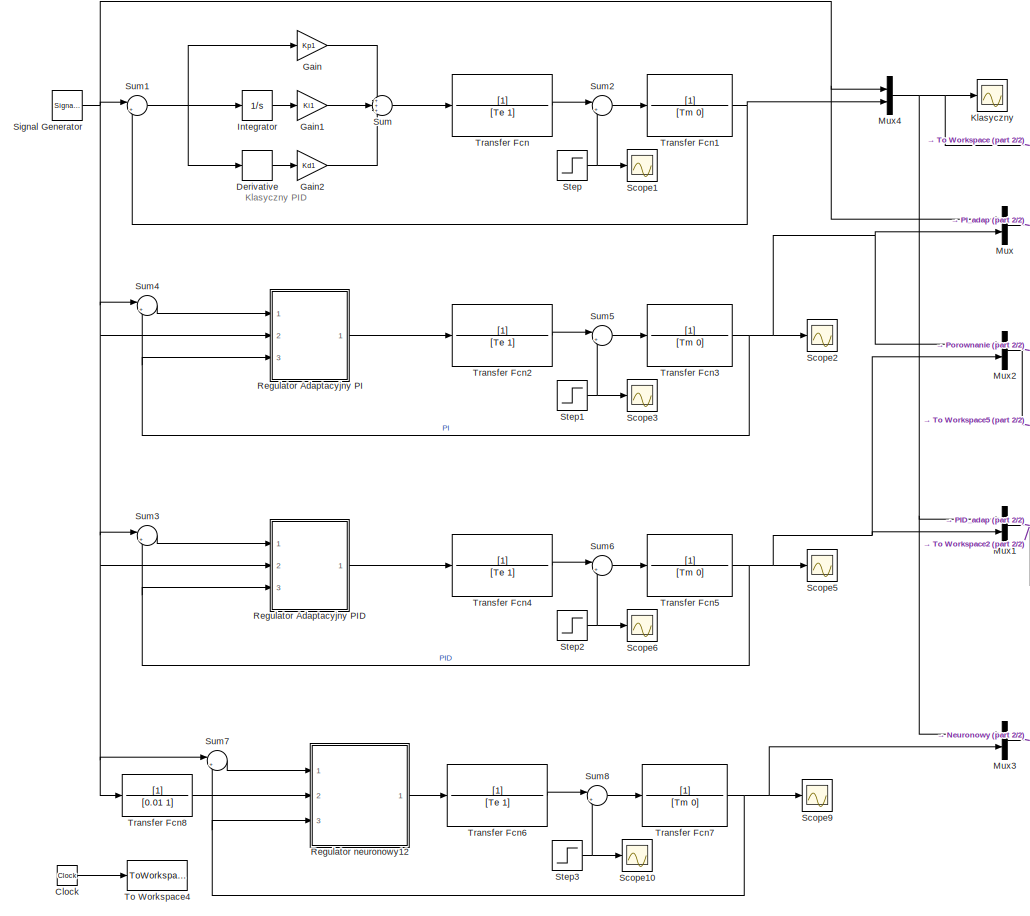
[diagram: root canvas - part 1/2, left side, full height]
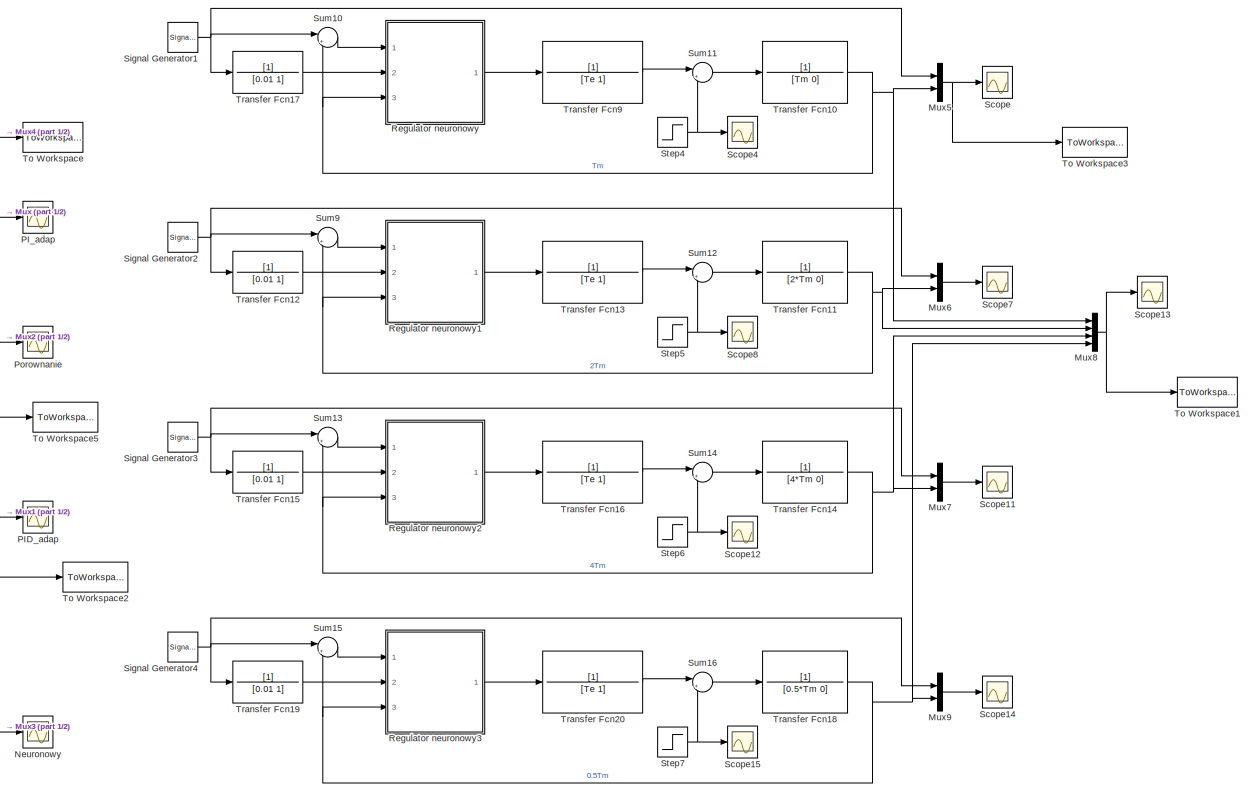
[diagram: root canvas - part 2/2, right side, full height]
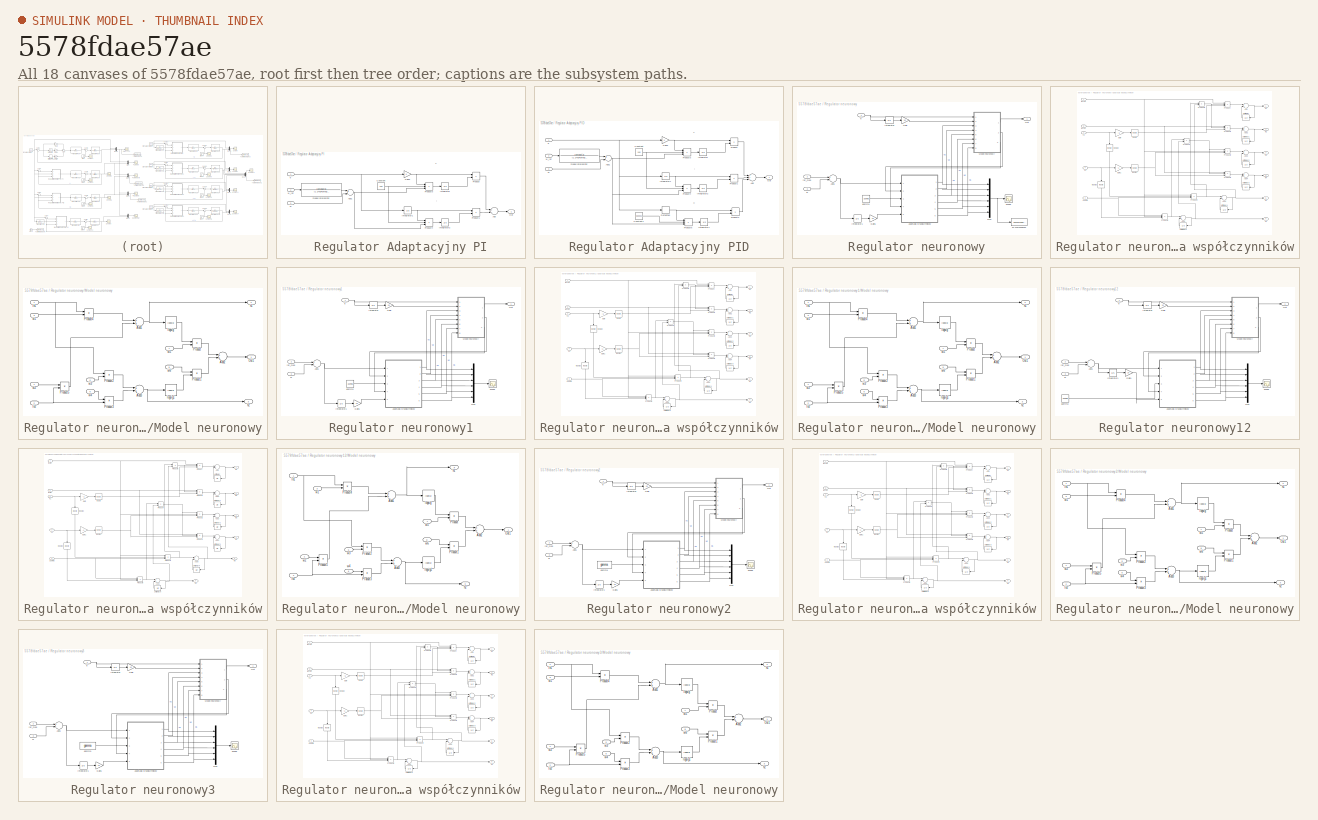
[diagram: thumbnail index - all 18 canvases of the model, root first then tree order]
MODEL slx_5578fdae57ae
KIND model
CONFIG AbsTol = auto
CONFIG EnableMultiTasking = off
CONFIG FixedStep = 0.0001
CONFIG MaxStep = auto
CONFIG MinStep = auto
CONFIG RelTol = 1e-3
CONFIG SampleTimeConstraint = Unconstrained
CONFIG Solver = ode1
CONFIG SolverName = ode1
CONFIG StartTime = 0.0
CONFIG StopTime = 10
BLOCK [Clock] Clock
BLOCK [Derivative] Derivative
BLOCK [Gain] Gain
  Gain = Kp1
  OutDataTypeStr = Inherit: Inherit via internal rule
  ParamDataTypeStr = Inherit: Inherit via internal rule
  SaturateOnIntegerOverflow = off
BLOCK [Gain] Gain1
  Gain = Ki1
  OutDataTypeStr = Inherit: Inherit via internal rule
  ParamDataTypeStr = Inherit: Inherit via internal rule
  SaturateOnIntegerOverflow = off
BLOCK [Gain] Gain2
  Gain = Kd1
  OutDataTypeStr = Inherit: Inherit via internal rule
  ParamDataTypeStr = Inherit: Inherit via internal rule
  SaturateOnIntegerOverflow = off
BLOCK [Integrator] Integrator
  Ports = [1, 1]
BLOCK [Scope] Klasyczny
  NumInputPorts = 1
  Ports = [1]
  ScopeSpecificationString = Simulink.scopes.TimeScopeBlockCfg('CurrentConfiguration', extmgr.ConfigurationSet(extmgr.Configuration('Core','General UI',true),extmgr.Configuration('Core','Source UI',true),extmgr.Configuration('Sources','WiredSimulink',true),extmgr.Configuration('Visuals','Time Domain',true,'SerializedDisplays',{struct('MinYLimReal','-1.98111','MaxYLimReal','1.98332','YLabelReal','','MinYLimMag','0.00000','MaxY...<+1385ch>
BLOCK [Mux] Mux
  DisplayOption = bar
  Inputs = 2
  Ports = [2, 1]
BLOCK [Mux] Mux1
  DisplayOption = bar
  Inputs = 2
  Ports = [2, 1]
BLOCK [Mux] Mux2
  DisplayOption = bar
  Inputs = 2
  Ports = [2, 1]
BLOCK [Mux] Mux3
  DisplayOption = bar
  Inputs = 2
  Ports = [2, 1]
BLOCK [Mux] Mux4
  DisplayOption = bar
  Inputs = 2
  Ports = [2, 1]
BLOCK [Mux] Mux5
  DisplayOption = bar
  Inputs = 2
  Ports = [2, 1]
BLOCK [Mux] Mux6
  DisplayOption = bar
  Inputs = 2
  Ports = [2, 1]
BLOCK [Mux] Mux7
  DisplayOption = bar
  Inputs = 2
  Ports = [2, 1]
BLOCK [Mux] Mux8
  DisplayOption = bar
  Ports = [4, 1]
BLOCK [Mux] Mux9
  DisplayOption = bar
  Inputs = 2
  Ports = [2, 1]
BLOCK [Scope] Neuronowy
  NumInputPorts = 1
  Ports = [1]
  ScopeSpecificationString = Simulink.scopes.TimeScopeBlockCfg('CurrentConfiguration', extmgr.ConfigurationSet(extmgr.Configuration('Core','General UI',true),extmgr.Configuration('Core','Source UI',true),extmgr.Configuration('Sources','WiredSimulink',true,'DataLoggingVariableName','ScopeData3'),extmgr.Configuration('Visuals','Time Domain',true,'SerializedDisplays',{struct('MinYLimReal','-2.23652','MaxYLimReal','2.0117','YLabe...<+1453ch>
BLOCK [Scope] PID_adap
  NumInputPorts = 1
  Ports = [1]
  ScopeSpecificationString = Simulink.scopes.TimeScopeBlockCfg('CurrentConfiguration', extmgr.ConfigurationSet(extmgr.Configuration('Core','General UI',true),extmgr.Configuration('Core','Source UI',true),extmgr.Configuration('Sources','WiredSimulink',true,'DataLoggingVariableName','ScopeData3'),extmgr.Configuration('Visuals','Time Domain',true,'SerializedDisplays',{struct('MinYLimReal','-1.98083','MaxYLimReal','1.98083','YLab...<+1445ch>
BLOCK [Scope] PI_adap
  NumInputPorts = 1
  Ports = [1]
  ScopeSpecificationString = Simulink.scopes.TimeScopeBlockCfg('CurrentConfiguration', extmgr.ConfigurationSet(extmgr.Configuration('Core','General UI',true),extmgr.Configuration('Core','Source UI',true),extmgr.Configuration('Sources','WiredSimulink',true,'DataLoggingVariableName','ScopeData3'),extmgr.Configuration('Visuals','Time Domain',true,'SerializedDisplays',{struct('MinYLimReal','-2.02333','MaxYLimReal','2.13875','YLab...<+1420ch>
BLOCK [Scope] Porownanie
  NumInputPorts = 1
  Ports = [1]
  ScopeSpecificationString = Simulink.scopes.TimeScopeBlockCfg('CurrentConfiguration', extmgr.ConfigurationSet(extmgr.Configuration('Core','General UI',true),extmgr.Configuration('Core','Source UI',true),extmgr.Configuration('Sources','WiredSimulink',true,'DataLoggingVariableName','ScopeData4'),extmgr.Configuration('Visuals','Time Domain',true,'SerializedDisplays',{struct('MinYLimReal','-2.02333','MaxYLimReal','2.13875','YLab...<+1394ch>
BLOCK [SubSystem] Regulator Adaptacyjny PI
  Ports = [3, 1]
  RequestExecContextInheritance = off
  Variant = off
BLOCK [Sum] Regulator Adaptacyjny PI/Add
  InputSameDT = off
  OutDataTypeStr = Inherit: Inherit via internal rule
  Ports = [2, 1]
  SaturateOnIntegerOverflow = off
BLOCK [Sum] Regulator Adaptacyjny PI/Add1
  InputSameDT = off
  Inputs = +-
  OutDataTypeStr = Inherit: Inherit via internal rule
  Ports = [2, 1]
  SaturateOnIntegerOverflow = off
BLOCK [Constant] Regulator Adaptacyjny PI/Constant
  Value = 100
BLOCK [Gain] Regulator Adaptacyjny PI/Gain3
  OutDataTypeStr = Inherit: Inherit via internal rule
  ParamDataTypeStr = Inherit: Inherit via internal rule
  SaturateOnIntegerOverflow = off
BLOCK [Integrator] Regulator Adaptacyjny PI/Integrator
  InitialCondition = Kp1
  Ports = [1, 1]
BLOCK [Integrator] Regulator Adaptacyjny PI/Integrator1
  Ports = [1, 1]
BLOCK [Integrator] Regulator Adaptacyjny PI/Integrator2
  InitialCondition = Ki1
  Ports = [1, 1]
BLOCK [Outport] Regulator Adaptacyjny PI/Out
  IconDisplay = Port number
BLOCK [Product] Regulator Adaptacyjny PI/Product
  InputSameDT = off
  OutDataTypeStr = Inherit: Inherit via internal rule
  Ports = [2, 1]
  RndMeth = Floor
  SaturateOnIntegerOverflow = off
BLOCK [Product] Regulator Adaptacyjny PI/Product1
  InputSameDT = off
  OutDataTypeStr = Inherit: Inherit via internal rule
  Ports = [2, 1]
  RndMeth = Floor
  SaturateOnIntegerOverflow = off
BLOCK [Product] Regulator Adaptacyjny PI/Product3
  InputSameDT = off
  Inputs = 3
  OutDataTypeStr = Inherit: Inherit via internal rule
  Ports = [3, 1]
  RndMeth = Floor
  SaturateOnIntegerOverflow = off
BLOCK [Product] Regulator Adaptacyjny PI/Product4
  InputSameDT = off
  Inputs = 3
  OutDataTypeStr = Inherit: Inherit via internal rule
  Ports = [3, 1]
  RndMeth = Floor
  SaturateOnIntegerOverflow = off
BLOCK [Inport] Regulator Adaptacyjny PI/e
  IconDisplay = Port number
BLOCK [TransferFcn] Regulator Adaptacyjny PI/model referencyjny
  Denominator = [1 2*ksi*omega omega^2]
  Numerator = [omega^2]
BLOCK [Inport] Regulator Adaptacyjny PI/w
  IconDisplay = Port number
  Port = 3
BLOCK [Inport] Regulator Adaptacyjny PI/w_ref
  IconDisplay = Port number
  Port = 2
BLOCK [SubSystem] Regulator Adaptacyjny PID
  Ports = [3, 1]
  RequestExecContextInheritance = off
  Variant = off
BLOCK [Sum] Regulator Adaptacyjny PID/Add
  InputSameDT = off
  Inputs = +++
  OutDataTypeStr = Inherit: Inherit via internal rule
  Ports = [3, 1]
  SaturateOnIntegerOverflow = off
BLOCK [Sum] Regulator Adaptacyjny PID/Add1
  InputSameDT = off
  Inputs = +-
  OutDataTypeStr = Inherit: Inherit via internal rule
  Ports = [2, 1]
  SaturateOnIntegerOverflow = off
BLOCK [Constant] Regulator Adaptacyjny PID/Constant
  Value = 100
BLOCK [Constant] Regulator Adaptacyjny PID/Constant1
  Value = 0.00001
BLOCK [Derivative] Regulator Adaptacyjny PID/Derivative
BLOCK [Gain] Regulator Adaptacyjny PID/Gain3
  OutDataTypeStr = Inherit: Inherit via internal rule
  ParamDataTypeStr = Inherit: Inherit via internal rule
  SaturateOnIntegerOverflow = off
BLOCK [Integrator] Regulator Adaptacyjny PID/Integrator
  InitialCondition = Kp1
  Ports = [1, 1]
BLOCK [Integrator] Regulator Adaptacyjny PID/Integrator1
  Ports = [1, 1]
BLOCK [Integrator] Regulator Adaptacyjny PID/Integrator2
  InitialCondition = Ki1
  Ports = [1, 1]
BLOCK [Integrator] Regulator Adaptacyjny PID/Integrator4
  InitialCondition = Kd1
  Ports = [1, 1]
BLOCK [Outport] Regulator Adaptacyjny PID/Out
  IconDisplay = Port number
BLOCK [Product] Regulator Adaptacyjny PID/Product
  InputSameDT = off
  OutDataTypeStr = Inherit: Inherit via internal rule
  Ports = [2, 1]
  RndMeth = Floor
  SaturateOnIntegerOverflow = off
BLOCK [Product] Regulator Adaptacyjny PID/Product1
  InputSameDT = off
  OutDataTypeStr = Inherit: Inherit via internal rule
  Ports = [2, 1]
  RndMeth = Floor
  SaturateOnIntegerOverflow = off
BLOCK [Product] Regulator Adaptacyjny PID/Product2
  InputSameDT = off
  OutDataTypeStr = Inherit: Inherit via internal rule
  Ports = [2, 1]
  RndMeth = Floor
  SaturateOnIntegerOverflow = off
BLOCK [Product] Regulator Adaptacyjny PID/Product3
  InputSameDT = off
  Inputs = 3
  OutDataTypeStr = Inherit: Inherit via internal rule
  Ports = [3, 1]
  RndMeth = Floor
  SaturateOnIntegerOverflow = off
BLOCK [Product] Regulator Adaptacyjny PID/Product4
  InputSameDT = off
  Inputs = 3
  OutDataTypeStr = Inherit: Inherit via internal rule
  Ports = [3, 1]
  RndMeth = Floor
  SaturateOnIntegerOverflow = off
BLOCK [Product] Regulator Adaptacyjny PID/Product5
  InputSameDT = off
  Inputs = 3
  OutDataTypeStr = Inherit: Inherit via internal rule
  Ports = [3, 1]
  RndMeth = Floor
  SaturateOnIntegerOverflow = off
BLOCK [Inport] Regulator Adaptacyjny PID/e
  IconDisplay = Port number
BLOCK [TransferFcn] Regulator Adaptacyjny PID/model referencyjny
  Denominator = [1 2*ksi*omega omega^2]
  Numerator = [omega^2]
BLOCK [Inport] Regulator Adaptacyjny PID/w
  IconDisplay = Port number
  Port = 3
BLOCK [Inport] Regulator Adaptacyjny PID/w_ref
  IconDisplay = Port number
  Port = 2
BLOCK [SubSystem] Regulator neuronowy
  Ports = [3, 1]
  RequestExecContextInheritance = off
  Variant = off
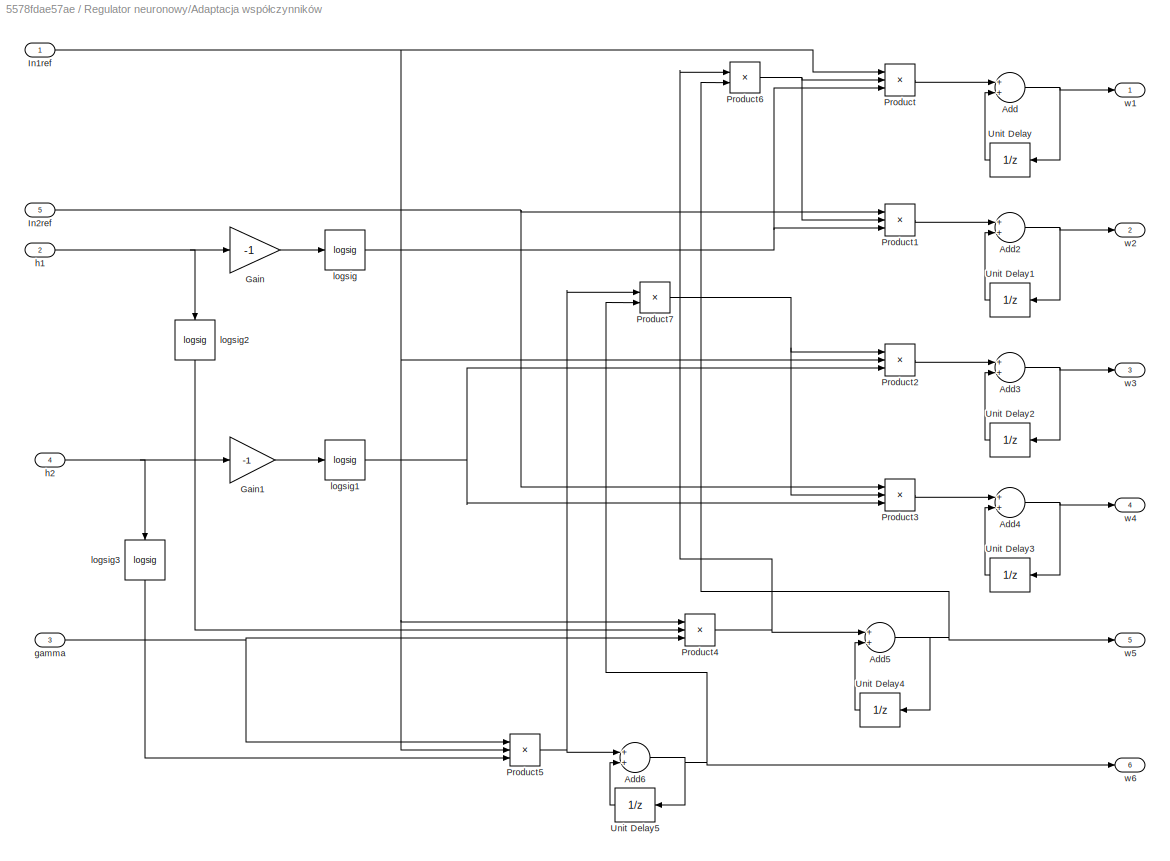
BLOCK [SubSystem] Regulator neuronowy/Adaptacja współczynników
  Ports = [5, 6]
  RequestExecContextInheritance = off
  Variant = off
BLOCK [Sum] Regulator neuronowy/Adaptacja współczynników/Add
  InputSameDT = off
  OutDataTypeStr = Inherit: Inherit via internal rule
  Ports = [2, 1]
  SaturateOnIntegerOverflow = off
BLOCK [Sum] Regulator neuronowy/Adaptacja współczynników/Add2
  InputSameDT = off
  OutDataTypeStr = Inherit: Inherit via internal rule
  Ports = [2, 1]
  SaturateOnIntegerOverflow = off
BLOCK [Sum] Regulator neuronowy/Adaptacja współczynników/Add3
  InputSameDT = off
  OutDataTypeStr = Inherit: Inherit via internal rule
  Ports = [2, 1]
  SaturateOnIntegerOverflow = off
BLOCK [Sum] Regulator neuronowy/Adaptacja współczynników/Add4
  InputSameDT = off
  OutDataTypeStr = Inherit: Inherit via internal rule
  Ports = [2, 1]
  SaturateOnIntegerOverflow = off
BLOCK [Sum] Regulator neuronowy/Adaptacja współczynników/Add5
  InputSameDT = off
  OutDataTypeStr = Inherit: Inherit via internal rule
  Ports = [2, 1]
  SaturateOnIntegerOverflow = off
BLOCK [Sum] Regulator neuronowy/Adaptacja współczynników/Add6
  InputSameDT = off
  OutDataTypeStr = Inherit: Inherit via internal rule
  Ports = [2, 1]
  SaturateOnIntegerOverflow = off
BLOCK [Gain] Regulator neuronowy/Adaptacja współczynników/Gain
  Gain = -1
  OutDataTypeStr = Inherit: Inherit via internal rule
  ParamDataTypeStr = Inherit: Inherit via internal rule
  SaturateOnIntegerOverflow = off
BLOCK [Gain] Regulator neuronowy/Adaptacja współczynników/Gain1
  Gain = -1
  OutDataTypeStr = Inherit: Inherit via internal rule
  ParamDataTypeStr = Inherit: Inherit via internal rule
  SaturateOnIntegerOverflow = off
BLOCK [Inport] Regulator neuronowy/Adaptacja współczynników/In1ref
  IconDisplay = Port number
BLOCK [Inport] Regulator neuronowy/Adaptacja współczynników/In2ref
  IconDisplay = Port number
  Port = 5
BLOCK [Product] Regulator neuronowy/Adaptacja współczynników/Product
  InputSameDT = off
  Inputs = 3
  OutDataTypeStr = Inherit: Inherit via internal rule
  Ports = [3, 1]
  RndMeth = Floor
  SaturateOnIntegerOverflow = off
BLOCK [Product] Regulator neuronowy/Adaptacja współczynników/Product1
  InputSameDT = off
  Inputs = 3
  OutDataTypeStr = Inherit: Inherit via internal rule
  Ports = [3, 1]
  RndMeth = Floor
  SaturateOnIntegerOverflow = off
BLOCK [Product] Regulator neuronowy/Adaptacja współczynników/Product2
  InputSameDT = off
  Inputs = 3
  OutDataTypeStr = Inherit: Inherit via internal rule
  Ports = [3, 1]
  RndMeth = Floor
  SaturateOnIntegerOverflow = off
BLOCK [Product] Regulator neuronowy/Adaptacja współczynników/Product3
  InputSameDT = off
  Inputs = 3
  OutDataTypeStr = Inherit: Inherit via internal rule
  Ports = [3, 1]
  RndMeth = Floor
  SaturateOnIntegerOverflow = off
BLOCK [Product] Regulator neuronowy/Adaptacja współczynników/Product4
  InputSameDT = off
  Inputs = 3
  OutDataTypeStr = Inherit: Inherit via internal rule
  Ports = [3, 1]
  RndMeth = Floor
  SaturateOnIntegerOverflow = off
BLOCK [Product] Regulator neuronowy/Adaptacja współczynników/Product5
  InputSameDT = off
  Inputs = 3
  OutDataTypeStr = Inherit: Inherit via internal rule
  Ports = [3, 1]
  RndMeth = Floor
  SaturateOnIntegerOverflow = off
BLOCK [Product] Regulator neuronowy/Adaptacja współczynników/Product6
  InputSameDT = off
  OutDataTypeStr = Inherit: Inherit via internal rule
  Ports = [2, 1]
  RndMeth = Floor
  SaturateOnIntegerOverflow = off
BLOCK [Product] Regulator neuronowy/Adaptacja współczynników/Product7
  InputSameDT = off
  OutDataTypeStr = Inherit: Inherit via internal rule
  Ports = [2, 1]
  RndMeth = Floor
  SaturateOnIntegerOverflow = off
BLOCK [UnitDelay] Regulator neuronowy/Adaptacja współczynników/Unit Delay
  InitialCondition = W1init
  InputProcessing = Elements as channels (sample based)
  SampleTime = -1
BLOCK [UnitDelay] Regulator neuronowy/Adaptacja współczynników/Unit Delay1
  InitialCondition = W2init
  InputProcessing = Elements as channels (sample based)
  SampleTime = -1
BLOCK [UnitDelay] Regulator neuronowy/Adaptacja współczynników/Unit Delay2
  InitialCondition = W3init
  InputProcessing = Elements as channels (sample based)
  SampleTime = -1
BLOCK [UnitDelay] Regulator neuronowy/Adaptacja współczynników/Unit Delay3
  InitialCondition = W4init
  InputProcessing = Elements as channels (sample based)
  SampleTime = -1
BLOCK [UnitDelay] Regulator neuronowy/Adaptacja współczynników/Unit Delay4
  InitialCondition = W5init
  InputProcessing = Elements as channels (sample based)
  SampleTime = -1
BLOCK [UnitDelay] Regulator neuronowy/Adaptacja współczynników/Unit Delay5
  InitialCondition = W6init
  InputProcessing = Elements as channels (sample based)
  SampleTime = -1
BLOCK [Inport] Regulator neuronowy/Adaptacja współczynników/gamma
  IconDisplay = Port number
  Port = 3
BLOCK [Inport] Regulator neuronowy/Adaptacja współczynników/h1
  IconDisplay = Port number
  Port = 2
BLOCK [Inport] Regulator neuronowy/Adaptacja współczynników/h2
  IconDisplay = Port number
  Port = 4
BLOCK [Reference] Regulator neuronowy/Adaptacja współczynników/logsig  REF=neural/Transfer Functions/logsig
  Ports = [1, 1]
  SourceBlock = neural/Transfer Functions/logsig
  SourceProductBaseCode = NN
  SourceProductName = Neural Network Toolbox
  SourceType = LOGSIG
BLOCK [Reference] Regulator neuronowy/Adaptacja współczynników/logsig1  REF=neural/Transfer Functions/logsig
  Ports = [1, 1]
  SourceBlock = neural/Transfer Functions/logsig
  SourceProductBaseCode = NN
  SourceProductName = Neural Network Toolbox
  SourceType = LOGSIG
BLOCK [Reference] Regulator neuronowy/Adaptacja współczynników/logsig2  REF=neural/Transfer Functions/logsig
  Ports = [1, 1]
  SourceBlock = neural/Transfer Functions/logsig
  SourceProductBaseCode = NN
  SourceProductName = Neural Network Toolbox
  SourceType = LOGSIG
BLOCK [Reference] Regulator neuronowy/Adaptacja współczynników/logsig3  REF=neural/Transfer Functions/logsig
  Ports = [1, 1]
  SourceBlock = neural/Transfer Functions/logsig
  SourceProductBaseCode = NN
  SourceProductName = Neural Network Toolbox
  SourceType = LOGSIG
BLOCK [Outport] Regulator neuronowy/Adaptacja współczynników/w1
  IconDisplay = Port number
BLOCK [Outport] Regulator neuronowy/Adaptacja współczynników/w2
  IconDisplay = Port number
  Port = 2
BLOCK [Outport] Regulator neuronowy/Adaptacja współczynników/w3
  IconDisplay = Port number
  Port = 3
BLOCK [Outport] Regulator neuronowy/Adaptacja współczynników/w4
  IconDisplay = Port number
  Port = 4
BLOCK [Outport] Regulator neuronowy/Adaptacja współczynników/w5
  IconDisplay = Port number
  Port = 5
BLOCK [Outport] Regulator neuronowy/Adaptacja współczynników/w6
  IconDisplay = Port number
  Port = 6
BLOCK [Sum] Regulator neuronowy/Add1
  InputSameDT = off
  Inputs = +-
  OutDataTypeStr = Inherit: Inherit via internal rule
  Ports = [2, 1]
  SaturateOnIntegerOverflow = off
BLOCK [Gain] Regulator neuronowy/Gain
  Gain = 15
  OutDataTypeStr = Inherit: Inherit via internal rule
  ParamDataTypeStr = Inherit: Inherit via internal rule
  SaturateOnIntegerOverflow = off
BLOCK [Gain] Regulator neuronowy/Gain1
  Gain = 15
  OutDataTypeStr = Inherit: Inherit via internal rule
  ParamDataTypeStr = Inherit: Inherit via internal rule
  SaturateOnIntegerOverflow = off
BLOCK [Integrator] Regulator neuronowy/Integrator
  Ports = [1, 1]
BLOCK [Integrator] Regulator neuronowy/Integrator1
  Ports = [1, 1]
BLOCK [SubSystem] Regulator neuronowy/Model neuronowy
  Ports = [8, 3]
  RequestExecContextInheritance = off
  Variant = off
BLOCK [Sum] Regulator neuronowy/Model neuronowy/Add1
  InputSameDT = off
  OutDataTypeStr = Inherit: Inherit via internal rule
  Ports = [2, 1]
  SaturateOnIntegerOverflow = off
BLOCK [Sum] Regulator neuronowy/Model neuronowy/Add2
  InputSameDT = off
  OutDataTypeStr = Inherit: Inherit via internal rule
  Ports = [2, 1]
  SaturateOnIntegerOverflow = off
BLOCK [Sum] Regulator neuronowy/Model neuronowy/Add3
  InputSameDT = off
  OutDataTypeStr = Inherit: Inherit via internal rule
  Ports = [2, 1]
  SaturateOnIntegerOverflow = off
BLOCK [Inport] Regulator neuronowy/Model neuronowy/In1
  IconDisplay = Port number
BLOCK [Inport] Regulator neuronowy/Model neuronowy/In2
  IconDisplay = Port number
  Port = 2
BLOCK [Outport] Regulator neuronowy/Model neuronowy/Out1
  IconDisplay = Port number
BLOCK [Product] Regulator neuronowy/Model neuronowy/Product
  InputSameDT = off
  OutDataTypeStr = Inherit: Inherit via internal rule
  Ports = [2, 1]
  RndMeth = Floor
  SaturateOnIntegerOverflow = off
BLOCK [Product] Regulator neuronowy/Model neuronowy/Product1
  InputSameDT = off
  OutDataTypeStr = Inherit: Inherit via internal rule
  Ports = [2, 1]
  RndMeth = Floor
  SaturateOnIntegerOverflow = off
BLOCK [Product] Regulator neuronowy/Model neuronowy/Product2
  InputSameDT = off
  OutDataTypeStr = Inherit: Inherit via internal rule
  Ports = [2, 1]
  RndMeth = Floor
  SaturateOnIntegerOverflow = off
BLOCK [Product] Regulator neuronowy/Model neuronowy/Product3
  InputSameDT = off
  OutDataTypeStr = Inherit: Inherit via internal rule
  Ports = [2, 1]
  RndMeth = Floor
  SaturateOnIntegerOverflow = off
BLOCK [Product] Regulator neuronowy/Model neuronowy/Product4
  InputSameDT = off
  OutDataTypeStr = Inherit: Inherit via internal rule
  Ports = [2, 1]
  RndMeth = Floor
  SaturateOnIntegerOverflow = off
BLOCK [Product] Regulator neuronowy/Model neuronowy/Product5
  InputSameDT = off
  OutDataTypeStr = Inherit: Inherit via internal rule
  Ports = [2, 1]
  RndMeth = Floor
  SaturateOnIntegerOverflow = off
BLOCK [Outport] Regulator neuronowy/Model neuronowy/h1
  IconDisplay = Port number
  Port = 2
BLOCK [Outport] Regulator neuronowy/Model neuronowy/h2
  IconDisplay = Port number
  Port = 3
BLOCK [Reference] Regulator neuronowy/Model neuronowy/logsig  REF=neural/Transfer Functions/logsig
  Ports = [1, 1]
  SourceBlock = neural/Transfer Functions/logsig
  SourceProductBaseCode = NN
  SourceProductName = Neural Network Toolbox
  SourceType = LOGSIG
BLOCK [Reference] Regulator neuronowy/Model neuronowy/logsig1  REF=neural/Transfer Functions/logsig
  Ports = [1, 1]
  SourceBlock = neural/Transfer Functions/logsig
  SourceProductBaseCode = NN
  SourceProductName = Neural Network Toolbox
  SourceType = LOGSIG
BLOCK [Inport] Regulator neuronowy/Model neuronowy/w1
  IconDisplay = Port number
  Port = 3
BLOCK [Inport] Regulator neuronowy/Model neuronowy/w2
  IconDisplay = Port number
  Port = 4
BLOCK [Inport] Regulator neuronowy/Model neuronowy/w3
  IconDisplay = Port number
  Port = 5
BLOCK [Inport] Regulator neuronowy/Model neuronowy/w4
  IconDisplay = Port number
  Port = 6
BLOCK [Inport] Regulator neuronowy/Model neuronowy/w5
  IconDisplay = Port number
  Port = 7
BLOCK [Inport] Regulator neuronowy/Model neuronowy/w6
  IconDisplay = Port number
  Port = 8
BLOCK [Mux] Regulator neuronowy/Mux
  DisplayOption = bar
  Inputs = 6
  Ports = [6, 1]
BLOCK [Outport] Regulator neuronowy/Out
  IconDisplay = Port number
BLOCK [Scope] Regulator neuronowy/Scope
  NumInputPorts = 1
  Ports = [1]
  ScopeSpecificationString = Simulink.scopes.TimeScopeBlockCfg('CurrentConfiguration', extmgr.ConfigurationSet(extmgr.Configuration('Core','General UI',true),extmgr.Configuration('Core','Source UI',true),extmgr.Configuration('Sources','WiredSimulink',true),extmgr.Configuration('Visuals','Time Domain',true,'SerializedDisplays',{struct('MinYLimReal','-17.37393','MaxYLimReal','19.29915','YLabelReal','','MinYLimMag','0.00000','Ma...<+1384ch>  <repeated x4 — deduplicated; at blocks: Scope>
BLOCK [ToWorkspace] Regulator neuronowy/To Workspace3
  FixptAsFi = on
  MaxDataPoints = inf
  Ports = [1]
  SampleTime = -1
  Save2DSignal = 3-D array (concatenate along third dimension)
  VariableName = wagi
BLOCK [Inport] Regulator neuronowy/e
  IconDisplay = Port number
BLOCK [Constant] Regulator neuronowy/gamma
  Value = gamma
BLOCK [Inport] Regulator neuronowy/ref_mod
  IconDisplay = Port number
  Port = 2
BLOCK [Inport] Regulator neuronowy/w
  IconDisplay = Port number
  Port = 3
BLOCK [SubSystem] Regulator neuronowy1
  Ports = [3, 1]
  RequestExecContextInheritance = off
  Variant = off
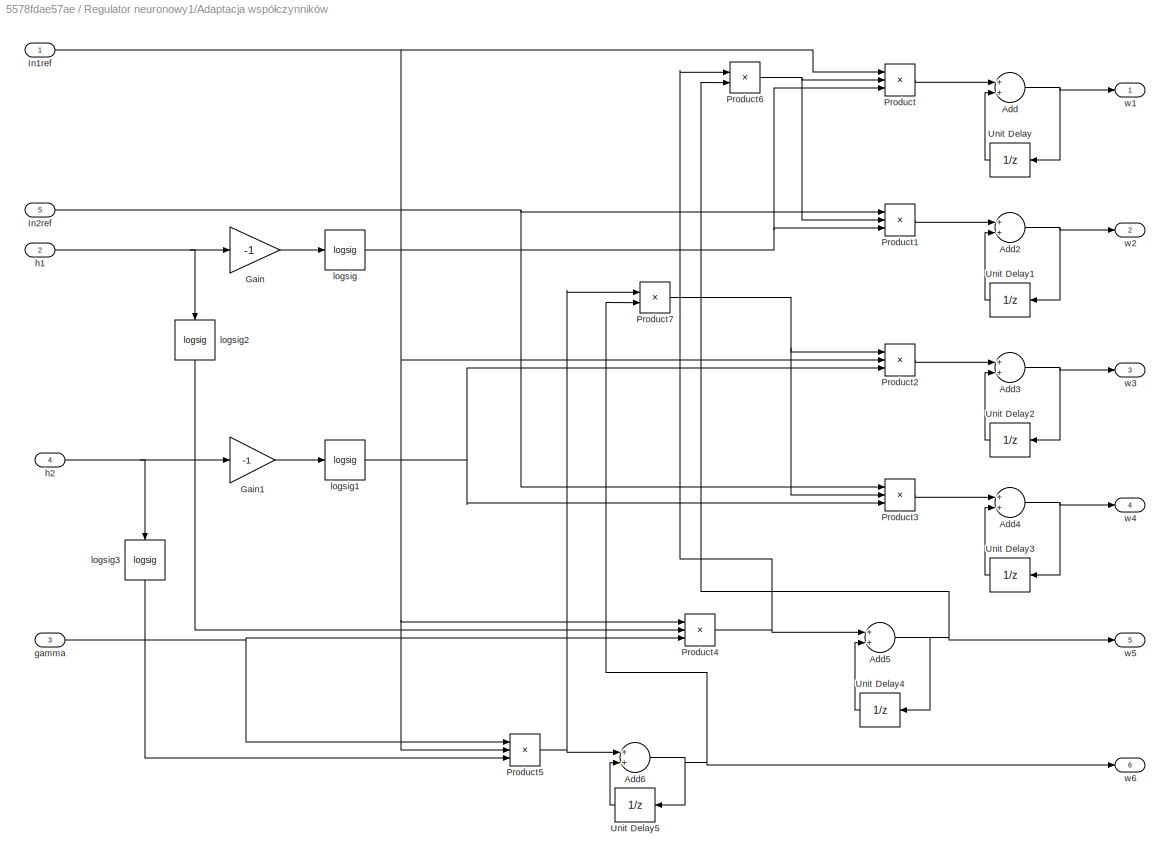
BLOCK [SubSystem] Regulator neuronowy1/Adaptacja współczynników
  Ports = [5, 6]
  RequestExecContextInheritance = off
  Variant = off
BLOCK [Sum] Regulator neuronowy1/Adaptacja współczynników/Add
  InputSameDT = off
  OutDataTypeStr = Inherit: Inherit via internal rule
  Ports = [2, 1]
  SaturateOnIntegerOverflow = off
BLOCK [Sum] Regulator neuronowy1/Adaptacja współczynników/Add2
  InputSameDT = off
  OutDataTypeStr = Inherit: Inherit via internal rule
  Ports = [2, 1]
  SaturateOnIntegerOverflow = off
BLOCK [Sum] Regulator neuronowy1/Adaptacja współczynników/Add3
  InputSameDT = off
  OutDataTypeStr = Inherit: Inherit via internal rule
  Ports = [2, 1]
  SaturateOnIntegerOverflow = off
BLOCK [Sum] Regulator neuronowy1/Adaptacja współczynników/Add4
  InputSameDT = off
  OutDataTypeStr = Inherit: Inherit via internal rule
  Ports = [2, 1]
  SaturateOnIntegerOverflow = off
BLOCK [Sum] Regulator neuronowy1/Adaptacja współczynników/Add5
  InputSameDT = off
  OutDataTypeStr = Inherit: Inherit via internal rule
  Ports = [2, 1]
  SaturateOnIntegerOverflow = off
BLOCK [Sum] Regulator neuronowy1/Adaptacja współczynników/Add6
  InputSameDT = off
  OutDataTypeStr = Inherit: Inherit via internal rule
  Ports = [2, 1]
  SaturateOnIntegerOverflow = off
BLOCK [Gain] Regulator neuronowy1/Adaptacja współczynników/Gain
  Gain = -1
  OutDataTypeStr = Inherit: Inherit via internal rule
  ParamDataTypeStr = Inherit: Inherit via internal rule
  SaturateOnIntegerOverflow = off
BLOCK [Gain] Regulator neuronowy1/Adaptacja współczynników/Gain1
  Gain = -1
  OutDataTypeStr = Inherit: Inherit via internal rule
  ParamDataTypeStr = Inherit: Inherit via internal rule
  SaturateOnIntegerOverflow = off
BLOCK [Inport] Regulator neuronowy1/Adaptacja współczynników/In1ref
  IconDisplay = Port number
BLOCK [Inport] Regulator neuronowy1/Adaptacja współczynników/In2ref
  IconDisplay = Port number
  Port = 5
BLOCK [Product] Regulator neuronowy1/Adaptacja współczynników/Product
  InputSameDT = off
  Inputs = 3
  OutDataTypeStr = Inherit: Inherit via internal rule
  Ports = [3, 1]
  RndMeth = Floor
  SaturateOnIntegerOverflow = off
BLOCK [Product] Regulator neuronowy1/Adaptacja współczynników/Product1
  InputSameDT = off
  Inputs = 3
  OutDataTypeStr = Inherit: Inherit via internal rule
  Ports = [3, 1]
  RndMeth = Floor
  SaturateOnIntegerOverflow = off
BLOCK [Product] Regulator neuronowy1/Adaptacja współczynników/Product2
  InputSameDT = off
  Inputs = 3
  OutDataTypeStr = Inherit: Inherit via internal rule
  Ports = [3, 1]
  RndMeth = Floor
  SaturateOnIntegerOverflow = off
BLOCK [Product] Regulator neuronowy1/Adaptacja współczynników/Product3
  InputSameDT = off
  Inputs = 3
  OutDataTypeStr = Inherit: Inherit via internal rule
  Ports = [3, 1]
  RndMeth = Floor
  SaturateOnIntegerOverflow = off
BLOCK [Product] Regulator neuronowy1/Adaptacja współczynników/Product4
  InputSameDT = off
  Inputs = 3
  OutDataTypeStr = Inherit: Inherit via internal rule
  Ports = [3, 1]
  RndMeth = Floor
  SaturateOnIntegerOverflow = off
BLOCK [Product] Regulator neuronowy1/Adaptacja współczynników/Product5
  InputSameDT = off
  Inputs = 3
  OutDataTypeStr = Inherit: Inherit via internal rule
  Ports = [3, 1]
  RndMeth = Floor
  SaturateOnIntegerOverflow = off
BLOCK [Product] Regulator neuronowy1/Adaptacja współczynników/Product6
  InputSameDT = off
  OutDataTypeStr = Inherit: Inherit via internal rule
  Ports = [2, 1]
  RndMeth = Floor
  SaturateOnIntegerOverflow = off
BLOCK [Product] Regulator neuronowy1/Adaptacja współczynników/Product7
  InputSameDT = off
  OutDataTypeStr = Inherit: Inherit via internal rule
  Ports = [2, 1]
  RndMeth = Floor
  SaturateOnIntegerOverflow = off
BLOCK [UnitDelay] Regulator neuronowy1/Adaptacja współczynników/Unit Delay
  InitialCondition = W1init
  InputProcessing = Elements as channels (sample based)
  SampleTime = -1
BLOCK [UnitDelay] Regulator neuronowy1/Adaptacja współczynników/Unit Delay1
  InitialCondition = W2init
  InputProcessing = Elements as channels (sample based)
  SampleTime = -1
BLOCK [UnitDelay] Regulator neuronowy1/Adaptacja współczynników/Unit Delay2
  InitialCondition = W3init
  InputProcessing = Elements as channels (sample based)
  SampleTime = -1
BLOCK [UnitDelay] Regulator neuronowy1/Adaptacja współczynników/Unit Delay3
  InitialCondition = W4init
  InputProcessing = Elements as channels (sample based)
  SampleTime = -1
BLOCK [UnitDelay] Regulator neuronowy1/Adaptacja współczynników/Unit Delay4
  InitialCondition = W5init
  InputProcessing = Elements as channels (sample based)
  SampleTime = -1
BLOCK [UnitDelay] Regulator neuronowy1/Adaptacja współczynników/Unit Delay5
  InitialCondition = W6init
  InputProcessing = Elements as channels (sample based)
  SampleTime = -1
BLOCK [Inport] Regulator neuronowy1/Adaptacja współczynników/gamma
  IconDisplay = Port number
  Port = 3
BLOCK [Inport] Regulator neuronowy1/Adaptacja współczynników/h1
  IconDisplay = Port number
  Port = 2
BLOCK [Inport] Regulator neuronowy1/Adaptacja współczynników/h2
  IconDisplay = Port number
  Port = 4
BLOCK [Reference] Regulator neuronowy1/Adaptacja współczynników/logsig  REF=neural/Transfer Functions/logsig
  Ports = [1, 1]
  SourceBlock = neural/Transfer Functions/logsig
  SourceProductBaseCode = NN
  SourceProductName = Neural Network Toolbox
  SourceType = LOGSIG
BLOCK [Reference] Regulator neuronowy1/Adaptacja współczynników/logsig1  REF=neural/Transfer Functions/logsig
  Ports = [1, 1]
  SourceBlock = neural/Transfer Functions/logsig
  SourceProductBaseCode = NN
  SourceProductName = Neural Network Toolbox
  SourceType = LOGSIG
BLOCK [Reference] Regulator neuronowy1/Adaptacja współczynników/logsig2  REF=neural/Transfer Functions/logsig
  Ports = [1, 1]
  SourceBlock = neural/Transfer Functions/logsig
  SourceProductBaseCode = NN
  SourceProductName = Neural Network Toolbox
  SourceType = LOGSIG
BLOCK [Reference] Regulator neuronowy1/Adaptacja współczynników/logsig3  REF=neural/Transfer Functions/logsig
  Ports = [1, 1]
  SourceBlock = neural/Transfer Functions/logsig
  SourceProductBaseCode = NN
  SourceProductName = Neural Network Toolbox
  SourceType = LOGSIG
BLOCK [Outport] Regulator neuronowy1/Adaptacja współczynników/w1
  IconDisplay = Port number
BLOCK [Outport] Regulator neuronowy1/Adaptacja współczynników/w2
  IconDisplay = Port number
  Port = 2
BLOCK [Outport] Regulator neuronowy1/Adaptacja współczynników/w3
  IconDisplay = Port number
  Port = 3
BLOCK [Outport] Regulator neuronowy1/Adaptacja współczynników/w4
  IconDisplay = Port number
  Port = 4
BLOCK [Outport] Regulator neuronowy1/Adaptacja współczynników/w5
  IconDisplay = Port number
  Port = 5
BLOCK [Outport] Regulator neuronowy1/Adaptacja współczynników/w6
  IconDisplay = Port number
  Port = 6
BLOCK [Sum] Regulator neuronowy1/Add1
  InputSameDT = off
  Inputs = +-
  OutDataTypeStr = Inherit: Inherit via internal rule
  Ports = [2, 1]
  SaturateOnIntegerOverflow = off
BLOCK [Gain] Regulator neuronowy1/Gain
  Gain = 15
  OutDataTypeStr = Inherit: Inherit via internal rule
  ParamDataTypeStr = Inherit: Inherit via internal rule
  SaturateOnIntegerOverflow = off
BLOCK [Gain] Regulator neuronowy1/Gain1
  Gain = 15
  OutDataTypeStr = Inherit: Inherit via internal rule
  ParamDataTypeStr = Inherit: Inherit via internal rule
  SaturateOnIntegerOverflow = off
BLOCK [Integrator] Regulator neuronowy1/Integrator
  Ports = [1, 1]
BLOCK [Integrator] Regulator neuronowy1/Integrator1
  Ports = [1, 1]
BLOCK [SubSystem] Regulator neuronowy1/Model neuronowy
  Ports = [8, 3]
  RequestExecContextInheritance = off
  Variant = off
BLOCK [Sum] Regulator neuronowy1/Model neuronowy/Add1
  InputSameDT = off
  OutDataTypeStr = Inherit: Inherit via internal rule
  Ports = [2, 1]
  SaturateOnIntegerOverflow = off
BLOCK [Sum] Regulator neuronowy1/Model neuronowy/Add2
  InputSameDT = off
  OutDataTypeStr = Inherit: Inherit via internal rule
  Ports = [2, 1]
  SaturateOnIntegerOverflow = off
BLOCK [Sum] Regulator neuronowy1/Model neuronowy/Add3
  InputSameDT = off
  OutDataTypeStr = Inherit: Inherit via internal rule
  Ports = [2, 1]
  SaturateOnIntegerOverflow = off
BLOCK [Inport] Regulator neuronowy1/Model neuronowy/In1
  IconDisplay = Port number
BLOCK [Inport] Regulator neuronowy1/Model neuronowy/In2
  IconDisplay = Port number
  Port = 2
BLOCK [Outport] Regulator neuronowy1/Model neuronowy/Out1
  IconDisplay = Port number
BLOCK [Product] Regulator neuronowy1/Model neuronowy/Product
  InputSameDT = off
  OutDataTypeStr = Inherit: Inherit via internal rule
  Ports = [2, 1]
  RndMeth = Floor
  SaturateOnIntegerOverflow = off
BLOCK [Product] Regulator neuronowy1/Model neuronowy/Product1
  InputSameDT = off
  OutDataTypeStr = Inherit: Inherit via internal rule
  Ports = [2, 1]
  RndMeth = Floor
  SaturateOnIntegerOverflow = off
BLOCK [Product] Regulator neuronowy1/Model neuronowy/Product2
  InputSameDT = off
  OutDataTypeStr = Inherit: Inherit via internal rule
  Ports = [2, 1]
  RndMeth = Floor
  SaturateOnIntegerOverflow = off
BLOCK [Product] Regulator neuronowy1/Model neuronowy/Product3
  InputSameDT = off
  OutDataTypeStr = Inherit: Inherit via internal rule
  Ports = [2, 1]
  RndMeth = Floor
  SaturateOnIntegerOverflow = off
BLOCK [Product] Regulator neuronowy1/Model neuronowy/Product4
  InputSameDT = off
  OutDataTypeStr = Inherit: Inherit via internal rule
  Ports = [2, 1]
  RndMeth = Floor
  SaturateOnIntegerOverflow = off
BLOCK [Product] Regulator neuronowy1/Model neuronowy/Product5
  InputSameDT = off
  OutDataTypeStr = Inherit: Inherit via internal rule
  Ports = [2, 1]
  RndMeth = Floor
  SaturateOnIntegerOverflow = off
BLOCK [Outport] Regulator neuronowy1/Model neuronowy/h1
  IconDisplay = Port number
  Port = 2
BLOCK [Outport] Regulator neuronowy1/Model neuronowy/h2
  IconDisplay = Port number
  Port = 3
BLOCK [Reference] Regulator neuronowy1/Model neuronowy/logsig  REF=neural/Transfer Functions/logsig
  Ports = [1, 1]
  SourceBlock = neural/Transfer Functions/logsig
  SourceProductBaseCode = NN
  SourceProductName = Neural Network Toolbox
  SourceType = LOGSIG
BLOCK [Reference] Regulator neuronowy1/Model neuronowy/logsig1  REF=neural/Transfer Functions/logsig
  Ports = [1, 1]
  SourceBlock = neural/Transfer Functions/logsig
  SourceProductBaseCode = NN
  SourceProductName = Neural Network Toolbox
  SourceType = LOGSIG
BLOCK [Inport] Regulator neuronowy1/Model neuronowy/w1
  IconDisplay = Port number
  Port = 3
BLOCK [Inport] Regulator neuronowy1/Model neuronowy/w2
  IconDisplay = Port number
  Port = 4
BLOCK [Inport] Regulator neuronowy1/Model neuronowy/w3
  IconDisplay = Port number
  Port = 5
BLOCK [Inport] Regulator neuronowy1/Model neuronowy/w4
  IconDisplay = Port number
  Port = 6
BLOCK [Inport] Regulator neuronowy1/Model neuronowy/w5
  IconDisplay = Port number
  Port = 7
BLOCK [Inport] Regulator neuronowy1/Model neuronowy/w6
  IconDisplay = Port number
  Port = 8
BLOCK [Mux] Regulator neuronowy1/Mux
  DisplayOption = bar
  Inputs = 6
  Ports = [6, 1]
BLOCK [Outport] Regulator neuronowy1/Out
  IconDisplay = Port number
BLOCK [Scope] Regulator neuronowy1/Scope
  NumInputPorts = 1
  Ports = [1]
BLOCK [Inport] Regulator neuronowy1/e
  IconDisplay = Port number
BLOCK [Constant] Regulator neuronowy1/gamma
  Value = gamma
BLOCK [Inport] Regulator neuronowy1/ref_mod
  IconDisplay = Port number
  Port = 2
BLOCK [Inport] Regulator neuronowy1/w
  IconDisplay = Port number
  Port = 3
BLOCK [SubSystem] Regulator neuronowy12
  Ports = [3, 1]
  RequestExecContextInheritance = off
  Variant = off
BLOCK [SubSystem] Regulator neuronowy12/Adaptacja współczynników
  Ports = [5, 6]
  RequestExecContextInheritance = off
  Variant = off
BLOCK [Sum] Regulator neuronowy12/Adaptacja współczynników/Add
  InputSameDT = off
  OutDataTypeStr = Inherit: Inherit via internal rule
  Ports = [2, 1]
  SaturateOnIntegerOverflow = off
BLOCK [Sum] Regulator neuronowy12/Adaptacja współczynników/Add2
  InputSameDT = off
  OutDataTypeStr = Inherit: Inherit via internal rule
  Ports = [2, 1]
  SaturateOnIntegerOverflow = off
BLOCK [Sum] Regulator neuronowy12/Adaptacja współczynników/Add3
  InputSameDT = off
  OutDataTypeStr = Inherit: Inherit via internal rule
  Ports = [2, 1]
  SaturateOnIntegerOverflow = off
BLOCK [Sum] Regulator neuronowy12/Adaptacja współczynników/Add4
  InputSameDT = off
  OutDataTypeStr = Inherit: Inherit via internal rule
  Ports = [2, 1]
  SaturateOnIntegerOverflow = off
BLOCK [Sum] Regulator neuronowy12/Adaptacja współczynników/Add5
  InputSameDT = off
  OutDataTypeStr = Inherit: Inherit via internal rule
  Ports = [2, 1]
  SaturateOnIntegerOverflow = off
BLOCK [Sum] Regulator neuronowy12/Adaptacja współczynników/Add6
  InputSameDT = off
  OutDataTypeStr = Inherit: Inherit via internal rule
  Ports = [2, 1]
  SaturateOnIntegerOverflow = off
BLOCK [Gain] Regulator neuronowy12/Adaptacja współczynników/Gain
  Gain = -1
  OutDataTypeStr = Inherit: Inherit via internal rule
  ParamDataTypeStr = Inherit: Inherit via internal rule
  SaturateOnIntegerOverflow = off
BLOCK [Gain] Regulator neuronowy12/Adaptacja współczynników/Gain1
  Gain = -1
  OutDataTypeStr = Inherit: Inherit via internal rule
  ParamDataTypeStr = Inherit: Inherit via internal rule
  SaturateOnIntegerOverflow = off
BLOCK [Inport] Regulator neuronowy12/Adaptacja współczynników/In1ref
  IconDisplay = Port number
BLOCK [Inport] Regulator neuronowy12/Adaptacja współczynników/In2ref
  IconDisplay = Port number
  Port = 5
BLOCK [Product] Regulator neuronowy12/Adaptacja współczynników/Product
  InputSameDT = off
  Inputs = 3
  OutDataTypeStr = Inherit: Inherit via internal rule
  Ports = [3, 1]
  RndMeth = Floor
  SaturateOnIntegerOverflow = off
BLOCK [Product] Regulator neuronowy12/Adaptacja współczynników/Product1
  InputSameDT = off
  Inputs = 3
  OutDataTypeStr = Inherit: Inherit via internal rule
  Ports = [3, 1]
  RndMeth = Floor
  SaturateOnIntegerOverflow = off
BLOCK [Product] Regulator neuronowy12/Adaptacja współczynników/Product2
  InputSameDT = off
  Inputs = 3
  OutDataTypeStr = Inherit: Inherit via internal rule
  Ports = [3, 1]
  RndMeth = Floor
  SaturateOnIntegerOverflow = off
BLOCK [Product] Regulator neuronowy12/Adaptacja współczynników/Product3
  InputSameDT = off
  Inputs = 3
  OutDataTypeStr = Inherit: Inherit via internal rule
  Ports = [3, 1]
  RndMeth = Floor
  SaturateOnIntegerOverflow = off
BLOCK [Product] Regulator neuronowy12/Adaptacja współczynników/Product4
  InputSameDT = off
  Inputs = 3
  OutDataTypeStr = Inherit: Inherit via internal rule
  Ports = [3, 1]
  RndMeth = Floor
  SaturateOnIntegerOverflow = off
BLOCK [Product] Regulator neuronowy12/Adaptacja współczynników/Product5
  InputSameDT = off
  Inputs = 3
  OutDataTypeStr = Inherit: Inherit via internal rule
  Ports = [3, 1]
  RndMeth = Floor
  SaturateOnIntegerOverflow = off
BLOCK [Product] Regulator neuronowy12/Adaptacja współczynników/Product6
  InputSameDT = off
  OutDataTypeStr = Inherit: Inherit via internal rule
  Ports = [2, 1]
  RndMeth = Floor
  SaturateOnIntegerOverflow = off
BLOCK [Product] Regulator neuronowy12/Adaptacja współczynników/Product7
  InputSameDT = off
  OutDataTypeStr = Inherit: Inherit via internal rule
  Ports = [2, 1]
  RndMeth = Floor
  SaturateOnIntegerOverflow = off
BLOCK [UnitDelay] Regulator neuronowy12/Adaptacja współczynników/Unit Delay
  InitialCondition = W1init
  InputProcessing = Elements as channels (sample based)
  SampleTime = -1
BLOCK [UnitDelay] Regulator neuronowy12/Adaptacja współczynników/Unit Delay1
  InitialCondition = W2init
  InputProcessing = Elements as channels (sample based)
  SampleTime = -1
BLOCK [UnitDelay] Regulator neuronowy12/Adaptacja współczynników/Unit Delay2
  InitialCondition = W3init
  InputProcessing = Elements as channels (sample based)
  SampleTime = -1
BLOCK [UnitDelay] Regulator neuronowy12/Adaptacja współczynników/Unit Delay3
  InitialCondition = W4init
  InputProcessing = Elements as channels (sample based)
  SampleTime = -1
BLOCK [UnitDelay] Regulator neuronowy12/Adaptacja współczynników/Unit Delay4
  InitialCondition = W5init
  InputProcessing = Elements as channels (sample based)
  SampleTime = -1
BLOCK [UnitDelay] Regulator neuronowy12/Adaptacja współczynników/Unit Delay5
  InitialCondition = W6init
  InputProcessing = Elements as channels (sample based)
  SampleTime = -1
BLOCK [Inport] Regulator neuronowy12/Adaptacja współczynników/gamma
  IconDisplay = Port number
  Port = 3
BLOCK [Inport] Regulator neuronowy12/Adaptacja współczynników/h1
  IconDisplay = Port number
  Port = 2
BLOCK [Inport] Regulator neuronowy12/Adaptacja współczynników/h2
  IconDisplay = Port number
  Port = 4
BLOCK [Reference] Regulator neuronowy12/Adaptacja współczynników/logsig  REF=neural/Transfer Functions/logsig
  Ports = [1, 1]
  SourceBlock = neural/Transfer Functions/logsig
  SourceProductBaseCode = NN
  SourceProductName = Neural Network Toolbox
  SourceType = LOGSIG
BLOCK [Reference] Regulator neuronowy12/Adaptacja współczynników/logsig1  REF=neural/Transfer Functions/logsig
  Ports = [1, 1]
  SourceBlock = neural/Transfer Functions/logsig
  SourceProductBaseCode = NN
  SourceProductName = Neural Network Toolbox
  SourceType = LOGSIG
BLOCK [Reference] Regulator neuronowy12/Adaptacja współczynników/logsig2  REF=neural/Transfer Functions/logsig
  Ports = [1, 1]
  SourceBlock = neural/Transfer Functions/logsig
  SourceProductBaseCode = NN
  SourceProductName = Neural Network Toolbox
  SourceType = LOGSIG
BLOCK [Reference] Regulator neuronowy12/Adaptacja współczynników/logsig3  REF=neural/Transfer Functions/logsig
  Ports = [1, 1]
  SourceBlock = neural/Transfer Functions/logsig
  SourceProductBaseCode = NN
  SourceProductName = Neural Network Toolbox
  SourceType = LOGSIG
BLOCK [Outport] Regulator neuronowy12/Adaptacja współczynników/w1
  IconDisplay = Port number
BLOCK [Outport] Regulator neuronowy12/Adaptacja współczynników/w2
  IconDisplay = Port number
  Port = 2
BLOCK [Outport] Regulator neuronowy12/Adaptacja współczynników/w3
  IconDisplay = Port number
  Port = 3
BLOCK [Outport] Regulator neuronowy12/Adaptacja współczynników/w4
  IconDisplay = Port number
  Port = 4
BLOCK [Outport] Regulator neuronowy12/Adaptacja współczynników/w5
  IconDisplay = Port number
  Port = 5
BLOCK [Outport] Regulator neuronowy12/Adaptacja współczynników/w6
  IconDisplay = Port number
  Port = 6
BLOCK [Sum] Regulator neuronowy12/Add1
  InputSameDT = off
  Inputs = +-
  OutDataTypeStr = Inherit: Inherit via internal rule
  Ports = [2, 1]
  SaturateOnIntegerOverflow = off
BLOCK [Gain] Regulator neuronowy12/Gain
  Gain = 15
  OutDataTypeStr = Inherit: Inherit via internal rule
  ParamDataTypeStr = Inherit: Inherit via internal rule
  SaturateOnIntegerOverflow = off
BLOCK [Gain] Regulator neuronowy12/Gain1
  Gain = 15
  OutDataTypeStr = Inherit: Inherit via internal rule
  ParamDataTypeStr = Inherit: Inherit via internal rule
  SaturateOnIntegerOverflow = off
BLOCK [Integrator] Regulator neuronowy12/Integrator
  Ports = [1, 1]
BLOCK [Integrator] Regulator neuronowy12/Integrator1
  Ports = [1, 1]
BLOCK [SubSystem] Regulator neuronowy12/Model neuronowy
  Ports = [8, 3]
  RequestExecContextInheritance = off
  Variant = off
BLOCK [Sum] Regulator neuronowy12/Model neuronowy/Add1
  InputSameDT = off
  OutDataTypeStr = Inherit: Inherit via internal rule
  Ports = [2, 1]
  SaturateOnIntegerOverflow = off
BLOCK [Sum] Regulator neuronowy12/Model neuronowy/Add2
  InputSameDT = off
  OutDataTypeStr = Inherit: Inherit via internal rule
  Ports = [2, 1]
  SaturateOnIntegerOverflow = off
BLOCK [Sum] Regulator neuronowy12/Model neuronowy/Add3
  InputSameDT = off
  OutDataTypeStr = Inherit: Inherit via internal rule
  Ports = [2, 1]
  SaturateOnIntegerOverflow = off
BLOCK [Inport] Regulator neuronowy12/Model neuronowy/In1
  IconDisplay = Port number
BLOCK [Inport] Regulator neuronowy12/Model neuronowy/In2
  IconDisplay = Port number
  Port = 2
BLOCK [Outport] Regulator neuronowy12/Model neuronowy/Out1
  IconDisplay = Port number
BLOCK [Product] Regulator neuronowy12/Model neuronowy/Product
  InputSameDT = off
  OutDataTypeStr = Inherit: Inherit via internal rule
  Ports = [2, 1]
  RndMeth = Floor
  SaturateOnIntegerOverflow = off
BLOCK [Product] Regulator neuronowy12/Model neuronowy/Product1
  InputSameDT = off
  OutDataTypeStr = Inherit: Inherit via internal rule
  Ports = [2, 1]
  RndMeth = Floor
  SaturateOnIntegerOverflow = off
BLOCK [Product] Regulator neuronowy12/Model neuronowy/Product2
  InputSameDT = off
  OutDataTypeStr = Inherit: Inherit via internal rule
  Ports = [2, 1]
  RndMeth = Floor
  SaturateOnIntegerOverflow = off
BLOCK [Product] Regulator neuronowy12/Model neuronowy/Product3
  InputSameDT = off
  OutDataTypeStr = Inherit: Inherit via internal rule
  Ports = [2, 1]
  RndMeth = Floor
  SaturateOnIntegerOverflow = off
BLOCK [Product] Regulator neuronowy12/Model neuronowy/Product4
  InputSameDT = off
  OutDataTypeStr = Inherit: Inherit via internal rule
  Ports = [2, 1]
  RndMeth = Floor
  SaturateOnIntegerOverflow = off
BLOCK [Product] Regulator neuronowy12/Model neuronowy/Product5
  InputSameDT = off
  OutDataTypeStr = Inherit: Inherit via internal rule
  Ports = [2, 1]
  RndMeth = Floor
  SaturateOnIntegerOverflow = off
BLOCK [Outport] Regulator neuronowy12/Model neuronowy/h1
  IconDisplay = Port number
  Port = 2
BLOCK [Outport] Regulator neuronowy12/Model neuronowy/h2
  IconDisplay = Port number
  Port = 3
BLOCK [Reference] Regulator neuronowy12/Model neuronowy/logsig  REF=neural/Transfer Functions/logsig
  Ports = [1, 1]
  SourceBlock = neural/Transfer Functions/logsig
  SourceProductBaseCode = NN
  SourceProductName = Neural Network Toolbox
  SourceType = LOGSIG
BLOCK [Reference] Regulator neuronowy12/Model neuronowy/logsig1  REF=neural/Transfer Functions/logsig
  Ports = [1, 1]
  SourceBlock = neural/Transfer Functions/logsig
  SourceProductBaseCode = NN
  SourceProductName = Neural Network Toolbox
  SourceType = LOGSIG
BLOCK [Inport] Regulator neuronowy12/Model neuronowy/w1
  IconDisplay = Port number
  Port = 3
BLOCK [Inport] Regulator neuronowy12/Model neuronowy/w2
  IconDisplay = Port number
  Port = 4
BLOCK [Inport] Regulator neuronowy12/Model neuronowy/w3
  IconDisplay = Port number
  Port = 5
BLOCK [Inport] Regulator neuronowy12/Model neuronowy/w4
  IconDisplay = Port number
  Port = 6
BLOCK [Inport] Regulator neuronowy12/Model neuronowy/w5
  IconDisplay = Port number
  Port = 7
BLOCK [Inport] Regulator neuronowy12/Model neuronowy/w6
  IconDisplay = Port number
  Port = 8
BLOCK [Mux] Regulator neuronowy12/Mux
  DisplayOption = bar
  Inputs = 6
  Ports = [6, 1]
BLOCK [Outport] Regulator neuronowy12/Out
  IconDisplay = Port number
BLOCK [Scope] Regulator neuronowy12/Scope
  NumInputPorts = 1
  Ports = [1]
  ScopeSpecificationString = Simulink.scopes.TimeScopeBlockCfg('CurrentConfiguration', extmgr.ConfigurationSet(extmgr.Configuration('Core','General UI',true),extmgr.Configuration('Core','Source UI',true),extmgr.Configuration('Sources','WiredSimulink',true),extmgr.Configuration('Visuals','Time Domain',true,'SerializedDisplays',{struct('MinYLimReal','-17.10656','MaxYLimReal','19.36624','YLabelReal','','MinYLimMag','0.00000','Ma...<+1497ch>
BLOCK [Inport] Regulator neuronowy12/e
  IconDisplay = Port number
BLOCK [Constant] Regulator neuronowy12/gamma
  Value = gamma
BLOCK [Inport] Regulator neuronowy12/ref_mod
  IconDisplay = Port number
  Port = 2
BLOCK [Inport] Regulator neuronowy12/w
  IconDisplay = Port number
  Port = 3
BLOCK [SubSystem] Regulator neuronowy2
  Ports = [3, 1]
  RequestExecContextInheritance = off
  Variant = off
BLOCK [SubSystem] Regulator neuronowy2/Adaptacja współczynników
  Ports = [5, 6]
  RequestExecContextInheritance = off
  Variant = off
BLOCK [Sum] Regulator neuronowy2/Adaptacja współczynników/Add
  InputSameDT = off
  OutDataTypeStr = Inherit: Inherit via internal rule
  Ports = [2, 1]
  SaturateOnIntegerOverflow = off
BLOCK [Sum] Regulator neuronowy2/Adaptacja współczynników/Add2
  InputSameDT = off
  OutDataTypeStr = Inherit: Inherit via internal rule
  Ports = [2, 1]
  SaturateOnIntegerOverflow = off
BLOCK [Sum] Regulator neuronowy2/Adaptacja współczynników/Add3
  InputSameDT = off
  OutDataTypeStr = Inherit: Inherit via internal rule
  Ports = [2, 1]
  SaturateOnIntegerOverflow = off
BLOCK [Sum] Regulator neuronowy2/Adaptacja współczynników/Add4
  InputSameDT = off
  OutDataTypeStr = Inherit: Inherit via internal rule
  Ports = [2, 1]
  SaturateOnIntegerOverflow = off
BLOCK [Sum] Regulator neuronowy2/Adaptacja współczynników/Add5
  InputSameDT = off
  OutDataTypeStr = Inherit: Inherit via internal rule
  Ports = [2, 1]
  SaturateOnIntegerOverflow = off
BLOCK [Sum] Regulator neuronowy2/Adaptacja współczynników/Add6
  InputSameDT = off
  OutDataTypeStr = Inherit: Inherit via internal rule
  Ports = [2, 1]
  SaturateOnIntegerOverflow = off
BLOCK [Gain] Regulator neuronowy2/Adaptacja współczynników/Gain
  Gain = -1
  OutDataTypeStr = Inherit: Inherit via internal rule
  ParamDataTypeStr = Inherit: Inherit via internal rule
  SaturateOnIntegerOverflow = off
BLOCK [Gain] Regulator neuronowy2/Adaptacja współczynników/Gain1
  Gain = -1
  OutDataTypeStr = Inherit: Inherit via internal rule
  ParamDataTypeStr = Inherit: Inherit via internal rule
  SaturateOnIntegerOverflow = off
BLOCK [Inport] Regulator neuronowy2/Adaptacja współczynników/In1ref
  IconDisplay = Port number
BLOCK [Inport] Regulator neuronowy2/Adaptacja współczynników/In2ref
  IconDisplay = Port number
  Port = 5
BLOCK [Product] Regulator neuronowy2/Adaptacja współczynników/Product
  InputSameDT = off
  Inputs = 3
  OutDataTypeStr = Inherit: Inherit via internal rule
  Ports = [3, 1]
  RndMeth = Floor
  SaturateOnIntegerOverflow = off
BLOCK [Product] Regulator neuronowy2/Adaptacja współczynników/Product1
  InputSameDT = off
  Inputs = 3
  OutDataTypeStr = Inherit: Inherit via internal rule
  Ports = [3, 1]
  RndMeth = Floor
  SaturateOnIntegerOverflow = off
BLOCK [Product] Regulator neuronowy2/Adaptacja współczynników/Product2
  InputSameDT = off
  Inputs = 3
  OutDataTypeStr = Inherit: Inherit via internal rule
  Ports = [3, 1]
  RndMeth = Floor
  SaturateOnIntegerOverflow = off
BLOCK [Product] Regulator neuronowy2/Adaptacja współczynników/Product3
  InputSameDT = off
  Inputs = 3
  OutDataTypeStr = Inherit: Inherit via internal rule
  Ports = [3, 1]
  RndMeth = Floor
  SaturateOnIntegerOverflow = off
BLOCK [Product] Regulator neuronowy2/Adaptacja współczynników/Product4
  InputSameDT = off
  Inputs = 3
  OutDataTypeStr = Inherit: Inherit via internal rule
  Ports = [3, 1]
  RndMeth = Floor
  SaturateOnIntegerOverflow = off
BLOCK [Product] Regulator neuronowy2/Adaptacja współczynników/Product5
  InputSameDT = off
  Inputs = 3
  OutDataTypeStr = Inherit: Inherit via internal rule
  Ports = [3, 1]
  RndMeth = Floor
  SaturateOnIntegerOverflow = off
BLOCK [Product] Regulator neuronowy2/Adaptacja współczynników/Product6
  InputSameDT = off
  OutDataTypeStr = Inherit: Inherit via internal rule
  Ports = [2, 1]
  RndMeth = Floor
  SaturateOnIntegerOverflow = off
BLOCK [Product] Regulator neuronowy2/Adaptacja współczynników/Product7
  InputSameDT = off
  OutDataTypeStr = Inherit: Inherit via internal rule
  Ports = [2, 1]
  RndMeth = Floor
  SaturateOnIntegerOverflow = off
BLOCK [UnitDelay] Regulator neuronowy2/Adaptacja współczynników/Unit Delay
  InitialCondition = W1init
  InputProcessing = Elements as channels (sample based)
  SampleTime = -1
BLOCK [UnitDelay] Regulator neuronowy2/Adaptacja współczynników/Unit Delay1
  InitialCondition = W2init
  InputProcessing = Elements as channels (sample based)
  SampleTime = -1
BLOCK [UnitDelay] Regulator neuronowy2/Adaptacja współczynników/Unit Delay2
  InitialCondition = W3init
  InputProcessing = Elements as channels (sample based)
  SampleTime = -1
BLOCK [UnitDelay] Regulator neuronowy2/Adaptacja współczynników/Unit Delay3
  InitialCondition = W4init
  InputProcessing = Elements as channels (sample based)
  SampleTime = -1
BLOCK [UnitDelay] Regulator neuronowy2/Adaptacja współczynników/Unit Delay4
  InitialCondition = W5init
  InputProcessing = Elements as channels (sample based)
  SampleTime = -1
BLOCK [UnitDelay] Regulator neuronowy2/Adaptacja współczynników/Unit Delay5
  InitialCondition = W6init
  InputProcessing = Elements as channels (sample based)
  SampleTime = -1
BLOCK [Inport] Regulator neuronowy2/Adaptacja współczynników/gamma
  IconDisplay = Port number
  Port = 3
BLOCK [Inport] Regulator neuronowy2/Adaptacja współczynników/h1
  IconDisplay = Port number
  Port = 2
BLOCK [Inport] Regulator neuronowy2/Adaptacja współczynników/h2
  IconDisplay = Port number
  Port = 4
BLOCK [Reference] Regulator neuronowy2/Adaptacja współczynników/logsig  REF=neural/Transfer Functions/logsig
  Ports = [1, 1]
  SourceBlock = neural/Transfer Functions/logsig
  SourceProductBaseCode = NN
  SourceProductName = Neural Network Toolbox
  SourceType = LOGSIG
BLOCK [Reference] Regulator neuronowy2/Adaptacja współczynników/logsig1  REF=neural/Transfer Functions/logsig
  Ports = [1, 1]
  SourceBlock = neural/Transfer Functions/logsig
  SourceProductBaseCode = NN
  SourceProductName = Neural Network Toolbox
  SourceType = LOGSIG
BLOCK [Reference] Regulator neuronowy2/Adaptacja współczynników/logsig2  REF=neural/Transfer Functions/logsig
  Ports = [1, 1]
  SourceBlock = neural/Transfer Functions/logsig
  SourceProductBaseCode = NN
  SourceProductName = Neural Network Toolbox
  SourceType = LOGSIG
BLOCK [Reference] Regulator neuronowy2/Adaptacja współczynników/logsig3  REF=neural/Transfer Functions/logsig
  Ports = [1, 1]
  SourceBlock = neural/Transfer Functions/logsig
  SourceProductBaseCode = NN
  SourceProductName = Neural Network Toolbox
  SourceType = LOGSIG
BLOCK [Outport] Regulator neuronowy2/Adaptacja współczynników/w1
  IconDisplay = Port number
BLOCK [Outport] Regulator neuronowy2/Adaptacja współczynników/w2
  IconDisplay = Port number
  Port = 2
BLOCK [Outport] Regulator neuronowy2/Adaptacja współczynników/w3
  IconDisplay = Port number
  Port = 3
BLOCK [Outport] Regulator neuronowy2/Adaptacja współczynników/w4
  IconDisplay = Port number
  Port = 4
BLOCK [Outport] Regulator neuronowy2/Adaptacja współczynników/w5
  IconDisplay = Port number
  Port = 5
BLOCK [Outport] Regulator neuronowy2/Adaptacja współczynników/w6
  IconDisplay = Port number
  Port = 6
BLOCK [Sum] Regulator neuronowy2/Add1
  InputSameDT = off
  Inputs = +-
  OutDataTypeStr = Inherit: Inherit via internal rule
  Ports = [2, 1]
  SaturateOnIntegerOverflow = off
BLOCK [Gain] Regulator neuronowy2/Gain
  Gain = 15
  OutDataTypeStr = Inherit: Inherit via internal rule
  ParamDataTypeStr = Inherit: Inherit via internal rule
  SaturateOnIntegerOverflow = off
BLOCK [Gain] Regulator neuronowy2/Gain1
  Gain = 15
  OutDataTypeStr = Inherit: Inherit via internal rule
  ParamDataTypeStr = Inherit: Inherit via internal rule
  SaturateOnIntegerOverflow = off
BLOCK [Integrator] Regulator neuronowy2/Integrator
  Ports = [1, 1]
BLOCK [Integrator] Regulator neuronowy2/Integrator1
  Ports = [1, 1]
BLOCK [SubSystem] Regulator neuronowy2/Model neuronowy
  Ports = [8, 3]
  RequestExecContextInheritance = off
  Variant = off
BLOCK [Sum] Regulator neuronowy2/Model neuronowy/Add1
  InputSameDT = off
  OutDataTypeStr = Inherit: Inherit via internal rule
  Ports = [2, 1]
  SaturateOnIntegerOverflow = off
BLOCK [Sum] Regulator neuronowy2/Model neuronowy/Add2
  InputSameDT = off
  OutDataTypeStr = Inherit: Inherit via internal rule
  Ports = [2, 1]
  SaturateOnIntegerOverflow = off
BLOCK [Sum] Regulator neuronowy2/Model neuronowy/Add3
  InputSameDT = off
  OutDataTypeStr = Inherit: Inherit via internal rule
  Ports = [2, 1]
  SaturateOnIntegerOverflow = off
BLOCK [Inport] Regulator neuronowy2/Model neuronowy/In1
  IconDisplay = Port number
BLOCK [Inport] Regulator neuronowy2/Model neuronowy/In2
  IconDisplay = Port number
  Port = 2
BLOCK [Outport] Regulator neuronowy2/Model neuronowy/Out1
  IconDisplay = Port number
BLOCK [Product] Regulator neuronowy2/Model neuronowy/Product
  InputSameDT = off
  OutDataTypeStr = Inherit: Inherit via internal rule
  Ports = [2, 1]
  RndMeth = Floor
  SaturateOnIntegerOverflow = off
BLOCK [Product] Regulator neuronowy2/Model neuronowy/Product1
  InputSameDT = off
  OutDataTypeStr = Inherit: Inherit via internal rule
  Ports = [2, 1]
  RndMeth = Floor
  SaturateOnIntegerOverflow = off
BLOCK [Product] Regulator neuronowy2/Model neuronowy/Product2
  InputSameDT = off
  OutDataTypeStr = Inherit: Inherit via internal rule
  Ports = [2, 1]
  RndMeth = Floor
  SaturateOnIntegerOverflow = off
BLOCK [Product] Regulator neuronowy2/Model neuronowy/Product3
  InputSameDT = off
  OutDataTypeStr = Inherit: Inherit via internal rule
  Ports = [2, 1]
  RndMeth = Floor
  SaturateOnIntegerOverflow = off
BLOCK [Product] Regulator neuronowy2/Model neuronowy/Product4
  InputSameDT = off
  OutDataTypeStr = Inherit: Inherit via internal rule
  Ports = [2, 1]
  RndMeth = Floor
  SaturateOnIntegerOverflow = off
BLOCK [Product] Regulator neuronowy2/Model neuronowy/Product5
  InputSameDT = off
  OutDataTypeStr = Inherit: Inherit via internal rule
  Ports = [2, 1]
  RndMeth = Floor
  SaturateOnIntegerOverflow = off
BLOCK [Outport] Regulator neuronowy2/Model neuronowy/h1
  IconDisplay = Port number
  Port = 2
BLOCK [Outport] Regulator neuronowy2/Model neuronowy/h2
  IconDisplay = Port number
  Port = 3
BLOCK [Reference] Regulator neuronowy2/Model neuronowy/logsig  REF=neural/Transfer Functions/logsig
  Ports = [1, 1]
  SourceBlock = neural/Transfer Functions/logsig
  SourceProductBaseCode = NN
  SourceProductName = Neural Network Toolbox
  SourceType = LOGSIG
BLOCK [Reference] Regulator neuronowy2/Model neuronowy/logsig1  REF=neural/Transfer Functions/logsig
  Ports = [1, 1]
  SourceBlock = neural/Transfer Functions/logsig
  SourceProductBaseCode = NN
  SourceProductName = Neural Network Toolbox
  SourceType = LOGSIG
BLOCK [Inport] Regulator neuronowy2/Model neuronowy/w1
  IconDisplay = Port number
  Port = 3
BLOCK [Inport] Regulator neuronowy2/Model neuronowy/w2
  IconDisplay = Port number
  Port = 4
BLOCK [Inport] Regulator neuronowy2/Model neuronowy/w3
  IconDisplay = Port number
  Port = 5
BLOCK [Inport] Regulator neuronowy2/Model neuronowy/w4
  IconDisplay = Port number
  Port = 6
BLOCK [Inport] Regulator neuronowy2/Model neuronowy/w5
  IconDisplay = Port number
  Port = 7
BLOCK [Inport] Regulator neuronowy2/Model neuronowy/w6
  IconDisplay = Port number
  Port = 8
BLOCK [Mux] Regulator neuronowy2/Mux
  DisplayOption = bar
  Inputs = 6
  Ports = [6, 1]
BLOCK [Outport] Regulator neuronowy2/Out
  IconDisplay = Port number
BLOCK [Scope] Regulator neuronowy2/Scope
  NumInputPorts = 1
  Ports = [1]
BLOCK [Inport] Regulator neuronowy2/e
  IconDisplay = Port number
BLOCK [Constant] Regulator neuronowy2/gamma
  Value = gamma
BLOCK [Inport] Regulator neuronowy2/ref_mod
  IconDisplay = Port number
  Port = 2
BLOCK [Inport] Regulator neuronowy2/w
  IconDisplay = Port number
  Port = 3
BLOCK [SubSystem] Regulator neuronowy3
  Ports = [3, 1]
  RequestExecContextInheritance = off
  Variant = off
BLOCK [SubSystem] Regulator neuronowy3/Adaptacja współczynników
  Ports = [5, 6]
  RequestExecContextInheritance = off
  Variant = off
BLOCK [Sum] Regulator neuronowy3/Adaptacja współczynników/Add
  InputSameDT = off
  OutDataTypeStr = Inherit: Inherit via internal rule
  Ports = [2, 1]
  SaturateOnIntegerOverflow = off
BLOCK [Sum] Regulator neuronowy3/Adaptacja współczynników/Add2
  InputSameDT = off
  OutDataTypeStr = Inherit: Inherit via internal rule
  Ports = [2, 1]
  SaturateOnIntegerOverflow = off
BLOCK [Sum] Regulator neuronowy3/Adaptacja współczynników/Add3
  InputSameDT = off
  OutDataTypeStr = Inherit: Inherit via internal rule
  Ports = [2, 1]
  SaturateOnIntegerOverflow = off
BLOCK [Sum] Regulator neuronowy3/Adaptacja współczynników/Add4
  InputSameDT = off
  OutDataTypeStr = Inherit: Inherit via internal rule
  Ports = [2, 1]
  SaturateOnIntegerOverflow = off
BLOCK [Sum] Regulator neuronowy3/Adaptacja współczynników/Add5
  InputSameDT = off
  OutDataTypeStr = Inherit: Inherit via internal rule
  Ports = [2, 1]
  SaturateOnIntegerOverflow = off
BLOCK [Sum] Regulator neuronowy3/Adaptacja współczynników/Add6
  InputSameDT = off
  OutDataTypeStr = Inherit: Inherit via internal rule
  Ports = [2, 1]
  SaturateOnIntegerOverflow = off
BLOCK [Gain] Regulator neuronowy3/Adaptacja współczynników/Gain
  Gain = -1
  OutDataTypeStr = Inherit: Inherit via internal rule
  ParamDataTypeStr = Inherit: Inherit via internal rule
  SaturateOnIntegerOverflow = off
BLOCK [Gain] Regulator neuronowy3/Adaptacja współczynników/Gain1
  Gain = -1
  OutDataTypeStr = Inherit: Inherit via internal rule
  ParamDataTypeStr = Inherit: Inherit via internal rule
  SaturateOnIntegerOverflow = off
BLOCK [Inport] Regulator neuronowy3/Adaptacja współczynników/In1ref
  IconDisplay = Port number
BLOCK [Inport] Regulator neuronowy3/Adaptacja współczynników/In2ref
  IconDisplay = Port number
  Port = 5
BLOCK [Product] Regulator neuronowy3/Adaptacja współczynników/Product
  InputSameDT = off
  Inputs = 3
  OutDataTypeStr = Inherit: Inherit via internal rule
  Ports = [3, 1]
  RndMeth = Floor
  SaturateOnIntegerOverflow = off
BLOCK [Product] Regulator neuronowy3/Adaptacja współczynników/Product1
  InputSameDT = off
  Inputs = 3
  OutDataTypeStr = Inherit: Inherit via internal rule
  Ports = [3, 1]
  RndMeth = Floor
  SaturateOnIntegerOverflow = off
BLOCK [Product] Regulator neuronowy3/Adaptacja współczynników/Product2
  InputSameDT = off
  Inputs = 3
  OutDataTypeStr = Inherit: Inherit via internal rule
  Ports = [3, 1]
  RndMeth = Floor
  SaturateOnIntegerOverflow = off
BLOCK [Product] Regulator neuronowy3/Adaptacja współczynników/Product3
  InputSameDT = off
  Inputs = 3
  OutDataTypeStr = Inherit: Inherit via internal rule
  Ports = [3, 1]
  RndMeth = Floor
  SaturateOnIntegerOverflow = off
BLOCK [Product] Regulator neuronowy3/Adaptacja współczynników/Product4
  InputSameDT = off
  Inputs = 3
  OutDataTypeStr = Inherit: Inherit via internal rule
  Ports = [3, 1]
  RndMeth = Floor
  SaturateOnIntegerOverflow = off
BLOCK [Product] Regulator neuronowy3/Adaptacja współczynników/Product5
  InputSameDT = off
  Inputs = 3
  OutDataTypeStr = Inherit: Inherit via internal rule
  Ports = [3, 1]
  RndMeth = Floor
  SaturateOnIntegerOverflow = off
BLOCK [Product] Regulator neuronowy3/Adaptacja współczynników/Product6
  InputSameDT = off
  OutDataTypeStr = Inherit: Inherit via internal rule
  Ports = [2, 1]
  RndMeth = Floor
  SaturateOnIntegerOverflow = off
BLOCK [Product] Regulator neuronowy3/Adaptacja współczynników/Product7
  InputSameDT = off
  OutDataTypeStr = Inherit: Inherit via internal rule
  Ports = [2, 1]
  RndMeth = Floor
  SaturateOnIntegerOverflow = off
BLOCK [UnitDelay] Regulator neuronowy3/Adaptacja współczynników/Unit Delay
  InitialCondition = W1init
  InputProcessing = Elements as channels (sample based)
  SampleTime = -1
BLOCK [UnitDelay] Regulator neuronowy3/Adaptacja współczynników/Unit Delay1
  InitialCondition = W2init
  InputProcessing = Elements as channels (sample based)
  SampleTime = -1
BLOCK [UnitDelay] Regulator neuronowy3/Adaptacja współczynników/Unit Delay2
  InitialCondition = W3init
  InputProcessing = Elements as channels (sample based)
  SampleTime = -1
BLOCK [UnitDelay] Regulator neuronowy3/Adaptacja współczynników/Unit Delay3
  InitialCondition = W4init
  InputProcessing = Elements as channels (sample based)
  SampleTime = -1
BLOCK [UnitDelay] Regulator neuronowy3/Adaptacja współczynników/Unit Delay4
  InitialCondition = W5init
  InputProcessing = Elements as channels (sample based)
  SampleTime = -1
BLOCK [UnitDelay] Regulator neuronowy3/Adaptacja współczynników/Unit Delay5
  InitialCondition = W6init
  InputProcessing = Elements as channels (sample based)
  SampleTime = -1
BLOCK [Inport] Regulator neuronowy3/Adaptacja współczynników/gamma
  IconDisplay = Port number
  Port = 3
BLOCK [Inport] Regulator neuronowy3/Adaptacja współczynników/h1
  IconDisplay = Port number
  Port = 2
BLOCK [Inport] Regulator neuronowy3/Adaptacja współczynników/h2
  IconDisplay = Port number
  Port = 4
BLOCK [Reference] Regulator neuronowy3/Adaptacja współczynników/logsig  REF=neural/Transfer Functions/logsig
  Ports = [1, 1]
  SourceBlock = neural/Transfer Functions/logsig
  SourceProductBaseCode = NN
  SourceProductName = Neural Network Toolbox
  SourceType = LOGSIG
BLOCK [Reference] Regulator neuronowy3/Adaptacja współczynników/logsig1  REF=neural/Transfer Functions/logsig
  Ports = [1, 1]
  SourceBlock = neural/Transfer Functions/logsig
  SourceProductBaseCode = NN
  SourceProductName = Neural Network Toolbox
  SourceType = LOGSIG
BLOCK [Reference] Regulator neuronowy3/Adaptacja współczynników/logsig2  REF=neural/Transfer Functions/logsig
  Ports = [1, 1]
  SourceBlock = neural/Transfer Functions/logsig
  SourceProductBaseCode = NN
  SourceProductName = Neural Network Toolbox
  SourceType = LOGSIG
BLOCK [Reference] Regulator neuronowy3/Adaptacja współczynników/logsig3  REF=neural/Transfer Functions/logsig
  Ports = [1, 1]
  SourceBlock = neural/Transfer Functions/logsig
  SourceProductBaseCode = NN
  SourceProductName = Neural Network Toolbox
  SourceType = LOGSIG
BLOCK [Outport] Regulator neuronowy3/Adaptacja współczynników/w1
  IconDisplay = Port number
BLOCK [Outport] Regulator neuronowy3/Adaptacja współczynników/w2
  IconDisplay = Port number
  Port = 2
BLOCK [Outport] Regulator neuronowy3/Adaptacja współczynników/w3
  IconDisplay = Port number
  Port = 3
BLOCK [Outport] Regulator neuronowy3/Adaptacja współczynników/w4
  IconDisplay = Port number
  Port = 4
BLOCK [Outport] Regulator neuronowy3/Adaptacja współczynników/w5
  IconDisplay = Port number
  Port = 5
BLOCK [Outport] Regulator neuronowy3/Adaptacja współczynników/w6
  IconDisplay = Port number
  Port = 6
BLOCK [Sum] Regulator neuronowy3/Add1
  InputSameDT = off
  Inputs = +-
  OutDataTypeStr = Inherit: Inherit via internal rule
  Ports = [2, 1]
  SaturateOnIntegerOverflow = off
BLOCK [Gain] Regulator neuronowy3/Gain
  Gain = 15
  OutDataTypeStr = Inherit: Inherit via internal rule
  ParamDataTypeStr = Inherit: Inherit via internal rule
  SaturateOnIntegerOverflow = off
BLOCK [Gain] Regulator neuronowy3/Gain1
  Gain = 15
  OutDataTypeStr = Inherit: Inherit via internal rule
  ParamDataTypeStr = Inherit: Inherit via internal rule
  SaturateOnIntegerOverflow = off
BLOCK [Integrator] Regulator neuronowy3/Integrator
  Ports = [1, 1]
BLOCK [Integrator] Regulator neuronowy3/Integrator1
  Ports = [1, 1]
BLOCK [SubSystem] Regulator neuronowy3/Model neuronowy
  Ports = [8, 3]
  RequestExecContextInheritance = off
  Variant = off
BLOCK [Sum] Regulator neuronowy3/Model neuronowy/Add1
  InputSameDT = off
  OutDataTypeStr = Inherit: Inherit via internal rule
  Ports = [2, 1]
  SaturateOnIntegerOverflow = off
BLOCK [Sum] Regulator neuronowy3/Model neuronowy/Add2
  InputSameDT = off
  OutDataTypeStr = Inherit: Inherit via internal rule
  Ports = [2, 1]
  SaturateOnIntegerOverflow = off
BLOCK [Sum] Regulator neuronowy3/Model neuronowy/Add3
  InputSameDT = off
  OutDataTypeStr = Inherit: Inherit via internal rule
  Ports = [2, 1]
  SaturateOnIntegerOverflow = off
BLOCK [Inport] Regulator neuronowy3/Model neuronowy/In1
  IconDisplay = Port number
BLOCK [Inport] Regulator neuronowy3/Model neuronowy/In2
  IconDisplay = Port number
  Port = 2
BLOCK [Outport] Regulator neuronowy3/Model neuronowy/Out1
  IconDisplay = Port number
BLOCK [Product] Regulator neuronowy3/Model neuronowy/Product
  InputSameDT = off
  OutDataTypeStr = Inherit: Inherit via internal rule
  Ports = [2, 1]
  RndMeth = Floor
  SaturateOnIntegerOverflow = off
BLOCK [Product] Regulator neuronowy3/Model neuronowy/Product1
  InputSameDT = off
  OutDataTypeStr = Inherit: Inherit via internal rule
  Ports = [2, 1]
  RndMeth = Floor
  SaturateOnIntegerOverflow = off
BLOCK [Product] Regulator neuronowy3/Model neuronowy/Product2
  InputSameDT = off
  OutDataTypeStr = Inherit: Inherit via internal rule
  Ports = [2, 1]
  RndMeth = Floor
  SaturateOnIntegerOverflow = off
BLOCK [Product] Regulator neuronowy3/Model neuronowy/Product3
  InputSameDT = off
  OutDataTypeStr = Inherit: Inherit via internal rule
  Ports = [2, 1]
  RndMeth = Floor
  SaturateOnIntegerOverflow = off
BLOCK [Product] Regulator neuronowy3/Model neuronowy/Product4
  InputSameDT = off
  OutDataTypeStr = Inherit: Inherit via internal rule
  Ports = [2, 1]
  RndMeth = Floor
  SaturateOnIntegerOverflow = off
BLOCK [Product] Regulator neuronowy3/Model neuronowy/Product5
  InputSameDT = off
  OutDataTypeStr = Inherit: Inherit via internal rule
  Ports = [2, 1]
  RndMeth = Floor
  SaturateOnIntegerOverflow = off
BLOCK [Outport] Regulator neuronowy3/Model neuronowy/h1
  IconDisplay = Port number
  Port = 2
BLOCK [Outport] Regulator neuronowy3/Model neuronowy/h2
  IconDisplay = Port number
  Port = 3
BLOCK [Reference] Regulator neuronowy3/Model neuronowy/logsig  REF=neural/Transfer Functions/logsig
  Ports = [1, 1]
  SourceBlock = neural/Transfer Functions/logsig
  SourceProductBaseCode = NN
  SourceProductName = Neural Network Toolbox
  SourceType = LOGSIG
BLOCK [Reference] Regulator neuronowy3/Model neuronowy/logsig1  REF=neural/Transfer Functions/logsig
  Ports = [1, 1]
  SourceBlock = neural/Transfer Functions/logsig
  SourceProductBaseCode = NN
  SourceProductName = Neural Network Toolbox
  SourceType = LOGSIG
BLOCK [Inport] Regulator neuronowy3/Model neuronowy/w1
  IconDisplay = Port number
  Port = 3
BLOCK [Inport] Regulator neuronowy3/Model neuronowy/w2
  IconDisplay = Port number
  Port = 4
BLOCK [Inport] Regulator neuronowy3/Model neuronowy/w3
  IconDisplay = Port number
  Port = 5
BLOCK [Inport] Regulator neuronowy3/Model neuronowy/w4
  IconDisplay = Port number
  Port = 6
BLOCK [Inport] Regulator neuronowy3/Model neuronowy/w5
  IconDisplay = Port number
  Port = 7
BLOCK [Inport] Regulator neuronowy3/Model neuronowy/w6
  IconDisplay = Port number
  Port = 8
BLOCK [Mux] Regulator neuronowy3/Mux
  DisplayOption = bar
  Inputs = 6
  Ports = [6, 1]
BLOCK [Outport] Regulator neuronowy3/Out
  IconDisplay = Port number
BLOCK [Scope] Regulator neuronowy3/Scope
  NumInputPorts = 1
  Ports = [1]
BLOCK [Inport] Regulator neuronowy3/e
  IconDisplay = Port number
BLOCK [Constant] Regulator neuronowy3/gamma
  Value = gamma
BLOCK [Inport] Regulator neuronowy3/ref_mod
  IconDisplay = Port number
  Port = 2
BLOCK [Inport] Regulator neuronowy3/w
  IconDisplay = Port number
  Port = 3
BLOCK [Scope] Scope
  NumInputPorts = 1
  Ports = [1]
  ScopeSpecificationString = Simulink.scopes.TimeScopeBlockCfg('CurrentConfiguration', extmgr.ConfigurationSet(extmgr.Configuration('Core','General UI',true),extmgr.Configuration('Core','Source UI',true),extmgr.Configuration('Sources','WiredSimulink',true,'DataLoggingVariableName','ScopeData1'),extmgr.Configuration('Visuals','Time Domain',true,'SerializedDisplays',{struct('MinYLimReal','-2.22041','MaxYLimReal','1.86673','YLab...<+1410ch>
BLOCK [Scope] Scope1
  NumInputPorts = 1
  Ports = [1]
  ScopeSpecificationString = Simulink.scopes.TimeScopeBlockCfg('CurrentConfiguration', extmgr.ConfigurationSet(extmgr.Configuration('Core','General UI',true),extmgr.Configuration('Core','Source UI',true),extmgr.Configuration('Sources','WiredSimulink',true,'DataLoggingVariableName','ScopeData1'),extmgr.Configuration('Visuals','Time Domain',true,'SerializedDisplays',{struct('MinYLimReal','-0.125','MaxYLimReal','1.125','YLabelRe...<+1351ch>
BLOCK [Scope] Scope10
  NumInputPorts = 1
  Ports = [1]
  ScopeSpecificationString = Simulink.scopes.TimeScopeBlockCfg('CurrentConfiguration', extmgr.ConfigurationSet(extmgr.Configuration('Core','General UI',true),extmgr.Configuration('Core','Source UI',true),extmgr.Configuration('Sources','WiredSimulink',true,'DataLoggingVariableName','ScopeData1'),extmgr.Configuration('Visuals','Time Domain',true),extmgr.Configuration('Tools','Plot Navigation',true),extmgr.Configuration('Tools',...<+40ch>
BLOCK [Scope] Scope11
  NumInputPorts = 1
  Ports = [1]
  ScopeSpecificationString = Simulink.scopes.TimeScopeBlockCfg('CurrentConfiguration', extmgr.ConfigurationSet(extmgr.Configuration('Core','General UI',true),extmgr.Configuration('Core','Source UI',true),extmgr.Configuration('Sources','WiredSimulink',true,'DataLoggingVariableName','ScopeData3'),extmgr.Configuration('Visuals','Time Domain',true,'SerializedDisplays',{struct('MinYLimReal','-2.22041','MaxYLimReal','1.86673','YLab...<+1415ch>
BLOCK [Scope] Scope12
  NumInputPorts = 1
  Ports = [1]
  ScopeSpecificationString = Simulink.scopes.TimeScopeBlockCfg('CurrentConfiguration', extmgr.ConfigurationSet(extmgr.Configuration('Core','General UI',true),extmgr.Configuration('Core','Source UI',true),extmgr.Configuration('Sources','WiredSimulink',true,'DataLoggingVariableName','ScopeData4'),extmgr.Configuration('Visuals','Time Domain',true,'SerializedDisplays',{struct('MinYLimReal','-0.125','MaxYLimReal','1.125','YLabelRe...<+1351ch>
BLOCK [Scope] Scope13
  NumInputPorts = 1
  Ports = [1]
  ScopeSpecificationString = Simulink.scopes.TimeScopeBlockCfg('CurrentConfiguration', extmgr.ConfigurationSet(extmgr.Configuration('Core','General UI',true),extmgr.Configuration('Core','Source UI',true),extmgr.Configuration('Sources','WiredSimulink',true,'DataLoggingVariableName','ScopeData7'),extmgr.Configuration('Visuals','Time Domain',true,'SerializedDisplays',{struct('MinYLimReal','-2.29222','MaxYLimReal','2.22445','YLab...<+1543ch>
BLOCK [Scope] Scope14
  NumInputPorts = 1
  Ports = [1]
  ScopeSpecificationString = Simulink.scopes.TimeScopeBlockCfg('CurrentConfiguration', extmgr.ConfigurationSet(extmgr.Configuration('Core','General UI',true),extmgr.Configuration('Core','Source UI',true),extmgr.Configuration('Sources','WiredSimulink',true,'DataLoggingVariableName','ScopeData5'),extmgr.Configuration('Visuals','Time Domain',true,'SerializedDisplays',{struct('MinYLimReal','-2.22064','MaxYLimReal','1.71992','YLab...<+1413ch>
BLOCK [Scope] Scope15
  NumInputPorts = 1
  Ports = [1]
  ScopeSpecificationString = Simulink.scopes.TimeScopeBlockCfg('CurrentConfiguration', extmgr.ConfigurationSet(extmgr.Configuration('Core','General UI',true),extmgr.Configuration('Core','Source UI',true),extmgr.Configuration('Sources','WiredSimulink',true,'DataLoggingVariableName','ScopeData6'),extmgr.Configuration('Visuals','Time Domain',true,'SerializedDisplays',{struct('MinYLimReal','-0.125','MaxYLimReal','1.125','YLabelRe...<+1351ch>
BLOCK [Scope] Scope2
  NumInputPorts = 1
  Ports = [1]
  ScopeSpecificationString = Simulink.scopes.TimeScopeBlockCfg('CurrentConfiguration', extmgr.ConfigurationSet(extmgr.Configuration('Core','General UI',true),extmgr.Configuration('Core','Source UI',true),extmgr.Configuration('Sources','WiredSimulink',true,'DataLoggingVariableName','ScopeData1'),extmgr.Configuration('Visuals','Time Domain',true,'SerializedDisplays',{struct('MinYLimReal','-2.02333','MaxYLimReal','2.13875','YLab...<+1372ch>
BLOCK [Scope] Scope3
  NumInputPorts = 1
  Ports = [1]
  ScopeSpecificationString = Simulink.scopes.TimeScopeBlockCfg('CurrentConfiguration', extmgr.ConfigurationSet(extmgr.Configuration('Core','General UI',true),extmgr.Configuration('Core','Source UI',true),extmgr.Configuration('Sources','WiredSimulink',true,'DataLoggingVariableName','ScopeData2'),extmgr.Configuration('Visuals','Time Domain',true),extmgr.Configuration('Tools','Plot Navigation',true),extmgr.Configuration('Tools',...<+40ch>
BLOCK [Scope] Scope4
  NumInputPorts = 1
  Ports = [1]
  ScopeSpecificationString = Simulink.scopes.TimeScopeBlockCfg('CurrentConfiguration', extmgr.ConfigurationSet(extmgr.Configuration('Core','General UI',true),extmgr.Configuration('Core','Source UI',true),extmgr.Configuration('Sources','WiredSimulink',true,'DataLoggingVariableName','ScopeData2'),extmgr.Configuration('Visuals','Time Domain',true,'SerializedDisplays',{struct('MinYLimReal','-0.125','MaxYLimReal','1.125','YLabelRe...<+1351ch>
BLOCK [Scope] Scope5
  NumInputPorts = 1
  Ports = [1]
  ScopeSpecificationString = Simulink.scopes.TimeScopeBlockCfg('CurrentConfiguration', extmgr.ConfigurationSet(extmgr.Configuration('Core','General UI',true),extmgr.Configuration('Core','Source UI',true),extmgr.Configuration('Sources','WiredSimulink',true,'DataLoggingVariableName','ScopeData1'),extmgr.Configuration('Visuals','Time Domain',true,'SerializedDisplays',{struct('MinYLimReal','-1.97665','MaxYLimReal','1.98859','YLab...<+1372ch>
BLOCK [Scope] Scope6
  NumInputPorts = 1
  Ports = [1]
  ScopeSpecificationString = Simulink.scopes.TimeScopeBlockCfg('CurrentConfiguration', extmgr.ConfigurationSet(extmgr.Configuration('Core','General UI',true),extmgr.Configuration('Core','Source UI',true),extmgr.Configuration('Sources','WiredSimulink',true,'DataLoggingVariableName','ScopeData2'),extmgr.Configuration('Visuals','Time Domain',true),extmgr.Configuration('Tools','Plot Navigation',true),extmgr.Configuration('Tools',...<+40ch>
BLOCK [Scope] Scope7
  NumInputPorts = 1
  Ports = [1]
  ScopeSpecificationString = Simulink.scopes.TimeScopeBlockCfg('CurrentConfiguration', extmgr.ConfigurationSet(extmgr.Configuration('Core','General UI',true),extmgr.Configuration('Core','Source UI',true),extmgr.Configuration('Sources','WiredSimulink',true,'DataLoggingVariableName','ScopeData1'),extmgr.Configuration('Visuals','Time Domain',true,'SerializedDisplays',{struct('MinYLimReal','-2.22041','MaxYLimReal','1.86673','YLab...<+1415ch>
BLOCK [Scope] Scope8
  NumInputPorts = 1
  Ports = [1]
  ScopeSpecificationString = Simulink.scopes.TimeScopeBlockCfg('CurrentConfiguration', extmgr.ConfigurationSet(extmgr.Configuration('Core','General UI',true),extmgr.Configuration('Core','Source UI',true),extmgr.Configuration('Sources','WiredSimulink',true,'DataLoggingVariableName','ScopeData2'),extmgr.Configuration('Visuals','Time Domain',true,'SerializedDisplays',{struct('MinYLimReal','-0.125','MaxYLimReal','1.125','YLabelRe...<+1351ch>
BLOCK [Scope] Scope9
  NumInputPorts = 1
  Ports = [1]
  ScopeSpecificationString = Simulink.scopes.TimeScopeBlockCfg('CurrentConfiguration', extmgr.ConfigurationSet(extmgr.Configuration('Core','General UI',true),extmgr.Configuration('Core','Source UI',true),extmgr.Configuration('Sources','WiredSimulink',true,'DataLoggingVariableName','ScopeData2'),extmgr.Configuration('Visuals','Time Domain',true,'SerializedDisplays',{struct('MinYLimReal','-2.22041','MaxYLimReal','1.86673','YLab...<+1372ch>
BLOCK [SignalGenerator] Signal Generator
  Ports = [0, 1]
  WaveForm = square
BLOCK [SignalGenerator] Signal Generator1
  Ports = [0, 1]
  WaveForm = square
BLOCK [SignalGenerator] Signal Generator2
  Ports = [0, 1]
  WaveForm = square
BLOCK [SignalGenerator] Signal Generator3
  Ports = [0, 1]
  WaveForm = square
BLOCK [SignalGenerator] Signal Generator4
  Ports = [0, 1]
  WaveForm = square
BLOCK [Step] Step
  SampleTime = 0
  Time = 2.25
BLOCK [Step] Step1
  SampleTime = 0
BLOCK [Step] Step2
  SampleTime = 0
BLOCK [Step] Step3
  SampleTime = 0
BLOCK [Step] Step4
  SampleTime = 0
  Time = 2.25
BLOCK [Step] Step5
  SampleTime = 0
  Time = 2.25
BLOCK [Step] Step6
  SampleTime = 0
  Time = 2.25
BLOCK [Step] Step7
  SampleTime = 0
  Time = 2.25
BLOCK [Sum] Sum
  IconShape = round
  InputSameDT = off
  Inputs = +++
  OutDataTypeStr = Inherit: Inherit via internal rule
  Ports = [3, 1]
  SaturateOnIntegerOverflow = off
BLOCK [Sum] Sum1
  IconShape = round
  InputSameDT = off
  Inputs = |+-
  OutDataTypeStr = Inherit: Inherit via internal rule
  Ports = [2, 1]
  SaturateOnIntegerOverflow = off
BLOCK [Sum] Sum10
  IconShape = round
  InputSameDT = off
  Inputs = |+-
  OutDataTypeStr = Inherit: Inherit via internal rule
  Ports = [2, 1]
  SaturateOnIntegerOverflow = off
BLOCK [Sum] Sum11
  IconShape = round
  InputSameDT = off
  Inputs = |+-
  OutDataTypeStr = Inherit: Inherit via internal rule
  Ports = [2, 1]
  SaturateOnIntegerOverflow = off
BLOCK [Sum] Sum12
  IconShape = round
  InputSameDT = off
  Inputs = |+-
  OutDataTypeStr = Inherit: Inherit via internal rule
  Ports = [2, 1]
  SaturateOnIntegerOverflow = off
BLOCK [Sum] Sum13
  IconShape = round
  InputSameDT = off
  Inputs = |+-
  OutDataTypeStr = Inherit: Inherit via internal rule
  Ports = [2, 1]
  SaturateOnIntegerOverflow = off
BLOCK [Sum] Sum14
  IconShape = round
  InputSameDT = off
  Inputs = |+-
  OutDataTypeStr = Inherit: Inherit via internal rule
  Ports = [2, 1]
  SaturateOnIntegerOverflow = off
BLOCK [Sum] Sum15
  IconShape = round
  InputSameDT = off
  Inputs = |+-
  OutDataTypeStr = Inherit: Inherit via internal rule
  Ports = [2, 1]
  SaturateOnIntegerOverflow = off
BLOCK [Sum] Sum16
  IconShape = round
  InputSameDT = off
  Inputs = |+-
  OutDataTypeStr = Inherit: Inherit via internal rule
  Ports = [2, 1]
  SaturateOnIntegerOverflow = off
BLOCK [Sum] Sum2
  IconShape = round
  InputSameDT = off
  Inputs = |+-
  OutDataTypeStr = Inherit: Inherit via internal rule
  Ports = [2, 1]
  SaturateOnIntegerOverflow = off
BLOCK [Sum] Sum3
  IconShape = round
  InputSameDT = off
  Inputs = |+-
  OutDataTypeStr = Inherit: Inherit via internal rule
  Ports = [2, 1]
  SaturateOnIntegerOverflow = off
BLOCK [Sum] Sum4
  IconShape = round
  InputSameDT = off
  Inputs = |+-
  OutDataTypeStr = Inherit: Inherit via internal rule
  Ports = [2, 1]
  SaturateOnIntegerOverflow = off
BLOCK [Sum] Sum5
  IconShape = round
  InputSameDT = off
  Inputs = |+-
  OutDataTypeStr = Inherit: Inherit via internal rule
  Ports = [2, 1]
  SaturateOnIntegerOverflow = off
BLOCK [Sum] Sum6
  IconShape = round
  InputSameDT = off
  Inputs = |+-
  OutDataTypeStr = Inherit: Inherit via internal rule
  Ports = [2, 1]
  SaturateOnIntegerOverflow = off
BLOCK [Sum] Sum7
  IconShape = round
  InputSameDT = off
  Inputs = |+-
  OutDataTypeStr = Inherit: Inherit via internal rule
  Ports = [2, 1]
  SaturateOnIntegerOverflow = off
BLOCK [Sum] Sum8
  IconShape = round
  InputSameDT = off
  Inputs = |+-
  OutDataTypeStr = Inherit: Inherit via internal rule
  Ports = [2, 1]
  SaturateOnIntegerOverflow = off
BLOCK [Sum] Sum9
  IconShape = round
  InputSameDT = off
  Inputs = |+-
  OutDataTypeStr = Inherit: Inherit via internal rule
  Ports = [2, 1]
  SaturateOnIntegerOverflow = off
BLOCK [ToWorkspace] To Workspace
  FixptAsFi = on
  MaxDataPoints = inf
  Ports = [1]
  SampleTime = -1
  Save2DSignal = 3-D array (concatenate along third dimension)
  VariableName = Klas_PID
BLOCK [ToWorkspace] To Workspace1
  FixptAsFi = on
  MaxDataPoints = inf
  Ports = [1]
  SampleTime = -1
  Save2DSignal = 3-D array (concatenate along third dimension)
  VariableName = Adap_neuro
BLOCK [ToWorkspace] To Workspace2
  FixptAsFi = on
  MaxDataPoints = inf
  Ports = [1]
  SampleTime = -1
  Save2DSignal = 3-D array (concatenate along third dimension)
  VariableName = Adap_PID
BLOCK [ToWorkspace] To Workspace3
  FixptAsFi = on
  MaxDataPoints = inf
  Ports = [1]
  SampleTime = -1
  Save2DSignal = 3-D array (concatenate along third dimension)
  VariableName = Neuro
BLOCK [ToWorkspace] To Workspace4
  FixptAsFi = on
  MaxDataPoints = inf
  Ports = [1]
  SampleTime = -1
  Save2DSignal = 3-D array (concatenate along third dimension)
  VariableName = czas
BLOCK [ToWorkspace] To Workspace5
  FixptAsFi = on
  MaxDataPoints = inf
  Ports = [1]
  SampleTime = -1
  Save2DSignal = 3-D array (concatenate along third dimension)
  VariableName = Porow
BLOCK [TransferFcn] Transfer Fcn
  Denominator = [Te 1]
BLOCK [TransferFcn] Transfer Fcn1
  Denominator = [Tm 0]
BLOCK [TransferFcn] Transfer Fcn10
  Denominator = [Tm 0]
BLOCK [TransferFcn] Transfer Fcn11
  Denominator = [2*Tm 0]
BLOCK [TransferFcn] Transfer Fcn12
  Denominator = [0.01 1]
BLOCK [TransferFcn] Transfer Fcn13
  Denominator = [Te 1]
BLOCK [TransferFcn] Transfer Fcn14
  Denominator = [4*Tm 0]
BLOCK [TransferFcn] Transfer Fcn15
  Denominator = [0.01 1]
BLOCK [TransferFcn] Transfer Fcn16
  Denominator = [Te 1]
BLOCK [TransferFcn] Transfer Fcn17
  Denominator = [0.01 1]
BLOCK [TransferFcn] Transfer Fcn18
  Denominator = [0.5*Tm 0]
BLOCK [TransferFcn] Transfer Fcn19
  Denominator = [0.01 1]
BLOCK [TransferFcn] Transfer Fcn2
  Denominator = [Te 1]
BLOCK [TransferFcn] Transfer Fcn20
  Denominator = [Te 1]
BLOCK [TransferFcn] Transfer Fcn3
  Denominator = [Tm 0]
BLOCK [TransferFcn] Transfer Fcn4
  Denominator = [Te 1]
BLOCK [TransferFcn] Transfer Fcn5
  Denominator = [Tm 0]
BLOCK [TransferFcn] Transfer Fcn6
  Denominator = [Te 1]
BLOCK [TransferFcn] Transfer Fcn7
  Denominator = [Tm 0]
BLOCK [TransferFcn] Transfer Fcn8
  Denominator = [0.01 1]
BLOCK [TransferFcn] Transfer Fcn9
  Denominator = [Te 1]
ANNOTATION (root): Klasyczny PID
ANNOTATION Regulator Adaptacyjny PI: I
ANNOTATION Regulator Adaptacyjny PI: P
ANNOTATION Regulator Adaptacyjny PID: D
ANNOTATION Regulator Adaptacyjny PID: I
ANNOTATION Regulator Adaptacyjny PID: P
LINE Clock:1 -> To Workspace4:1
LINE Derivative:1 -> Gain2:1
LINE Gain1:1 -> Sum:2
LINE Gain2:1 -> Sum:3
LINE Gain:1 -> Sum:1
LINE Integrator:1 -> Gain1:1
NET Mux1:1 -> PID_adap:1, To Workspace2:1
NET Mux2:1 -> Porownanie:1, To Workspace5:1
LINE Mux3:1 -> Neuronowy:1
NET Mux4:1 -> Klasyczny:1, Mux1:1, Mux3:1, To Workspace:1
NET Mux5:1 -> Scope:1, To Workspace3:1
LINE Mux6:1 -> Scope7:1
LINE Mux7:1 -> Scope11:1
NET Mux8:1 -> Scope13:1, To Workspace1:1
LINE Mux9:1 -> Scope14:1
LINE Mux:1 -> PI_adap:1
NET Regulator Adaptacyjny PI/Add1:1 -> Regulator Adaptacyjny PI/Product3:3, Regulator Adaptacyjny PI/Product4:3
LINE Regulator Adaptacyjny PI/Add:1 -> Regulator Adaptacyjny PI/Out:1
NET Regulator Adaptacyjny PI/Constant:1 -> Regulator Adaptacyjny PI/Product3:2, Regulator Adaptacyjny PI/Product4:2
NET Regulator Adaptacyjny PI/Gain3:1 -> Regulator Adaptacyjny PI/Product3:1, Regulator Adaptacyjny PI/Product:1
NET Regulator Adaptacyjny PI/Integrator1:1 -> Regulator Adaptacyjny PI/Product1:1, Regulator Adaptacyjny PI/Product4:1
LINE Regulator Adaptacyjny PI/Integrator2:1 -> Regulator Adaptacyjny PI/Product1:2
LINE Regulator Adaptacyjny PI/Integrator:1 -> Regulator Adaptacyjny PI/Product:2
LINE Regulator Adaptacyjny PI/Product1:1 -> Regulator Adaptacyjny PI/Add:2
LINE Regulator Adaptacyjny PI/Product3:1 -> Regulator Adaptacyjny PI/Integrator:1
LINE Regulator Adaptacyjny PI/Product4:1 -> Regulator Adaptacyjny PI/Integrator2:1
LINE Regulator Adaptacyjny PI/Product:1 -> Regulator Adaptacyjny PI/Add:1
NET Regulator Adaptacyjny PI/e:1 -> Regulator Adaptacyjny PI/Gain3:1, Regulator Adaptacyjny PI/Integrator1:1
LINE Regulator Adaptacyjny PI/model referencyjny:1 -> Regulator Adaptacyjny PI/Add1:1
LINE Regulator Adaptacyjny PI/w:1 -> Regulator Adaptacyjny PI/Add1:2
LINE Regulator Adaptacyjny PI/w_ref:1 -> Regulator Adaptacyjny PI/model referencyjny:1
LINE Regulator Adaptacyjny PI:1 -> Transfer Fcn2:1
NET Regulator Adaptacyjny PID/Add1:1 -> Regulator Adaptacyjny PID/Product3:3, Regulator Adaptacyjny PID/Product4:3, Regulator Adaptacyjny PID/Product5:3
LINE Regulator Adaptacyjny PID/Add:1 -> Regulator Adaptacyjny PID/Out:1
LINE Regulator Adaptacyjny PID/Constant1:1 -> Regulator Adaptacyjny PID/Product5:2
NET Regulator Adaptacyjny PID/Constant:1 -> Regulator Adaptacyjny PID/Product3:2, Regulator Adaptacyjny PID/Product4:2
NET Regulator Adaptacyjny PID/Derivative:1 -> Regulator Adaptacyjny PID/Product2:1, Regulator Adaptacyjny PID/Product5:1
NET Regulator Adaptacyjny PID/Gain3:1 -> Regulator Adaptacyjny PID/Product3:1, Regulator Adaptacyjny PID/Product:1
NET Regulator Adaptacyjny PID/Integrator1:1 -> Regulator Adaptacyjny PID/Product1:1, Regulator Adaptacyjny PID/Product4:1
LINE Regulator Adaptacyjny PID/Integrator2:1 -> Regulator Adaptacyjny PID/Product1:2
LINE Regulator Adaptacyjny PID/Integrator4:1 -> Regulator Adaptacyjny PID/Product2:2
LINE Regulator Adaptacyjny PID/Integrator:1 -> Regulator Adaptacyjny PID/Product:2
LINE Regulator Adaptacyjny PID/Product1:1 -> Regulator Adaptacyjny PID/Add:2
LINE Regulator Adaptacyjny PID/Product2:1 -> Regulator Adaptacyjny PID/Add:3
LINE Regulator Adaptacyjny PID/Product3:1 -> Regulator Adaptacyjny PID/Integrator:1
LINE Regulator Adaptacyjny PID/Product4:1 -> Regulator Adaptacyjny PID/Integrator2:1
LINE Regulator Adaptacyjny PID/Product5:1 -> Regulator Adaptacyjny PID/Integrator4:1
LINE Regulator Adaptacyjny PID/Product:1 -> Regulator Adaptacyjny PID/Add:1
NET Regulator Adaptacyjny PID/e:1 -> Regulator Adaptacyjny PID/Derivative:1, Regulator Adaptacyjny PID/Gain3:1, Regulator Adaptacyjny PID/Integrator1:1
LINE Regulator Adaptacyjny PID/model referencyjny:1 -> Regulator Adaptacyjny PID/Add1:1
LINE Regulator Adaptacyjny PID/w:1 -> Regulator Adaptacyjny PID/Add1:2
LINE Regulator Adaptacyjny PID/w_ref:1 -> Regulator Adaptacyjny PID/model referencyjny:1
LINE Regulator Adaptacyjny PID:1 -> Transfer Fcn4:1
NET Regulator neuronowy/Adaptacja współczynników/Add2:1 -> Regulator neuronowy/Adaptacja współczynników/Unit Delay1:1, Regulator neuronowy/Adaptacja współczynników/w2:1
NET Regulator neuronowy/Adaptacja współczynników/Add3:1 -> Regulator neuronowy/Adaptacja współczynników/Unit Delay2:1, Regulator neuronowy/Adaptacja współczynników/w3:1
NET Regulator neuronowy/Adaptacja współczynników/Add4:1 -> Regulator neuronowy/Adaptacja współczynników/Unit Delay3:1, Regulator neuronowy/Adaptacja współczynników/w4:1
NET Regulator neuronowy/Adaptacja współczynników/Add5:1 -> Regulator neuronowy/Adaptacja współczynników/Product6:2, Regulator neuronowy/Adaptacja współczynników/Unit Delay4:1, Regulator neuronowy/Adaptacja współczynników/w5:1
NET Regulator neuronowy/Adaptacja współczynników/Add6:1 -> Regulator neuronowy/Adaptacja współczynników/Product7:2, Regulator neuronowy/Adaptacja współczynników/Unit Delay5:1, Regulator neuronowy/Adaptacja współczynników/w6:1
NET Regulator neuronowy/Adaptacja współczynników/Add:1 -> Regulator neuronowy/Adaptacja współczynników/Unit Delay:1, Regulator neuronowy/Adaptacja współczynników/w1:1
LINE Regulator neuronowy/Adaptacja współczynników/Gain1:1 -> Regulator neuronowy/Adaptacja współczynników/logsig1:1
LINE Regulator neuronowy/Adaptacja współczynników/Gain:1 -> Regulator neuronowy/Adaptacja współczynników/logsig:1
NET Regulator neuronowy/Adaptacja współczynników/In1ref:1 -> Regulator neuronowy/Adaptacja współczynników/Product2:2, Regulator neuronowy/Adaptacja współczynników/Product4:1, Regulator neuronowy/Adaptacja współczynników/Product5:2, Regulator neuronowy/Adaptacja współczynników/Product:1
NET Regulator neuronowy/Adaptacja współczynników/In2ref:1 -> Regulator neuronowy/Adaptacja współczynników/Product1:1, Regulator neuronowy/Adaptacja współczynników/Product3:1
LINE Regulator neuronowy/Adaptacja współczynników/Product1:1 -> Regulator neuronowy/Adaptacja współczynników/Add2:1
LINE Regulator neuronowy/Adaptacja współczynników/Product2:1 -> Regulator neuronowy/Adaptacja współczynników/Add3:1
LINE Regulator neuronowy/Adaptacja współczynników/Product3:1 -> Regulator neuronowy/Adaptacja współczynników/Add4:1
NET Regulator neuronowy/Adaptacja współczynników/Product4:1 -> Regulator neuronowy/Adaptacja współczynników/Add5:1, Regulator neuronowy/Adaptacja współczynników/Product6:1
NET Regulator neuronowy/Adaptacja współczynników/Product5:1 -> Regulator neuronowy/Adaptacja współczynników/Add6:1, Regulator neuronowy/Adaptacja współczynników/Product7:1
NET Regulator neuronowy/Adaptacja współczynników/Product6:1 -> Regulator neuronowy/Adaptacja współczynników/Product1:2, Regulator neuronowy/Adaptacja współczynników/Product:2
NET Regulator neuronowy/Adaptacja współczynników/Product7:1 -> Regulator neuronowy/Adaptacja współczynników/Product2:1, Regulator neuronowy/Adaptacja współczynników/Product3:2
LINE Regulator neuronowy/Adaptacja współczynników/Product:1 -> Regulator neuronowy/Adaptacja współczynników/Add:1
LINE Regulator neuronowy/Adaptacja współczynników/Unit Delay1:1 -> Regulator neuronowy/Adaptacja współczynników/Add2:2
LINE Regulator neuronowy/Adaptacja współczynników/Unit Delay2:1 -> Regulator neuronowy/Adaptacja współczynników/Add3:2
LINE Regulator neuronowy/Adaptacja współczynników/Unit Delay3:1 -> Regulator neuronowy/Adaptacja współczynników/Add4:2
LINE Regulator neuronowy/Adaptacja współczynników/Unit Delay4:1 -> Regulator neuronowy/Adaptacja współczynników/Add5:2
LINE Regulator neuronowy/Adaptacja współczynników/Unit Delay5:1 -> Regulator neuronowy/Adaptacja współczynników/Add6:2
LINE Regulator neuronowy/Adaptacja współczynników/Unit Delay:1 -> Regulator neuronowy/Adaptacja współczynników/Add:2
NET Regulator neuronowy/Adaptacja współczynników/gamma:1 -> Regulator neuronowy/Adaptacja współczynników/Product4:3, Regulator neuronowy/Adaptacja współczynników/Product5:1
NET Regulator neuronowy/Adaptacja współczynników/h1:1 -> Regulator neuronowy/Adaptacja współczynników/Gain:1, Regulator neuronowy/Adaptacja współczynników/logsig2:1
NET Regulator neuronowy/Adaptacja współczynników/h2:1 -> Regulator neuronowy/Adaptacja współczynników/Gain1:1, Regulator neuronowy/Adaptacja współczynników/logsig3:1
NET Regulator neuronowy/Adaptacja współczynników/logsig1:1 -> Regulator neuronowy/Adaptacja współczynników/Product2:3, Regulator neuronowy/Adaptacja współczynników/Product3:3
LINE Regulator neuronowy/Adaptacja współczynników/logsig2:1 -> Regulator neuronowy/Adaptacja współczynników/Product4:2
LINE Regulator neuronowy/Adaptacja współczynników/logsig3:1 -> Regulator neuronowy/Adaptacja współczynników/Product5:3
NET Regulator neuronowy/Adaptacja współczynników/logsig:1 -> Regulator neuronowy/Adaptacja współczynników/Product1:3, Regulator neuronowy/Adaptacja współczynników/Product:3
NET Regulator neuronowy/Adaptacja współczynników:1 -> Regulator neuronowy/Model neuronowy:3, Regulator neuronowy/Mux:1
NET Regulator neuronowy/Adaptacja współczynników:2 -> Regulator neuronowy/Model neuronowy:4, Regulator neuronowy/Mux:2
NET Regulator neuronowy/Adaptacja współczynników:3 -> Regulator neuronowy/Model neuronowy:5, Regulator neuronowy/Mux:3
NET Regulator neuronowy/Adaptacja współczynników:4 -> Regulator neuronowy/Model neuronowy:6, Regulator neuronowy/Mux:4
NET Regulator neuronowy/Adaptacja współczynników:5 -> Regulator neuronowy/Model neuronowy:7, Regulator neuronowy/Mux:5
NET Regulator neuronowy/Adaptacja współczynników:6 -> Regulator neuronowy/Model neuronowy:8, Regulator neuronowy/Mux:6
NET Regulator neuronowy/Add1:1 -> Regulator neuronowy/Adaptacja współczynników:1, Regulator neuronowy/Integrator1:1
LINE Regulator neuronowy/Gain1:1 -> Regulator neuronowy/Adaptacja współczynników:5
LINE Regulator neuronowy/Gain:1 -> Regulator neuronowy/Model neuronowy:2
LINE Regulator neuronowy/Integrator1:1 -> Regulator neuronowy/Gain1:1
LINE Regulator neuronowy/Integrator:1 -> Regulator neuronowy/Gain:1
NET Regulator neuronowy/Model neuronowy/Add1:1 -> Regulator neuronowy/Model neuronowy/h1:1, Regulator neuronowy/Model neuronowy/logsig:1
LINE Regulator neuronowy/Model neuronowy/Add2:1 -> Regulator neuronowy/Model neuronowy/Out1:1
NET Regulator neuronowy/Model neuronowy/Add3:1 -> Regulator neuronowy/Model neuronowy/h2:1, Regulator neuronowy/Model neuronowy/logsig1:1
NET Regulator neuronowy/Model neuronowy/In1:1 -> Regulator neuronowy/Model neuronowy/Product2:1, Regulator neuronowy/Model neuronowy/Product4:1
NET Regulator neuronowy/Model neuronowy/In2:1 -> Regulator neuronowy/Model neuronowy/Product3:2, Regulator neuronowy/Model neuronowy/Product5:2
LINE Regulator neuronowy/Model neuronowy/Product1:1 -> Regulator neuronowy/Model neuronowy/Add2:2
LINE Regulator neuronowy/Model neuronowy/Product2:1 -> Regulator neuronowy/Model neuronowy/Add3:1
LINE Regulator neuronowy/Model neuronowy/Product3:1 -> Regulator neuronowy/Model neuronowy/Add3:2
LINE Regulator neuronowy/Model neuronowy/Product4:1 -> Regulator neuronowy/Model neuronowy/Add1:1
LINE Regulator neuronowy/Model neuronowy/Product5:1 -> Regulator neuronowy/Model neuronowy/Add1:2
LINE Regulator neuronowy/Model neuronowy/Product:1 -> Regulator neuronowy/Model neuronowy/Add2:1
LINE Regulator neuronowy/Model neuronowy/logsig1:1 -> Regulator neuronowy/Model neuronowy/Product1:2
LINE Regulator neuronowy/Model neuronowy/logsig:1 -> Regulator neuronowy/Model neuronowy/Product:1
LINE Regulator neuronowy/Model neuronowy/w1:1 -> Regulator neuronowy/Model neuronowy/Product4:2
LINE Regulator neuronowy/Model neuronowy/w2:1 -> Regulator neuronowy/Model neuronowy/Product5:1
LINE Regulator neuronowy/Model neuronowy/w3:1 -> Regulator neuronowy/Model neuronowy/Product2:2
LINE Regulator neuronowy/Model neuronowy/w4:1 -> Regulator neuronowy/Model neuronowy/Product3:1
LINE Regulator neuronowy/Model neuronowy/w5:1 -> Regulator neuronowy/Model neuronowy/Product:2
LINE Regulator neuronowy/Model neuronowy/w6:1 -> Regulator neuronowy/Model neuronowy/Product1:1
LINE Regulator neuronowy/Model neuronowy:1 -> Regulator neuronowy/Out:1
LINE Regulator neuronowy/Model neuronowy:2 -> Regulator neuronowy/Adaptacja współczynników:2
LINE Regulator neuronowy/Model neuronowy:3 -> Regulator neuronowy/Adaptacja współczynników:4
NET Regulator neuronowy/Mux:1 -> Regulator neuronowy/Scope:1, Regulator neuronowy/To Workspace3:1
NET Regulator neuronowy/e:1 -> Regulator neuronowy/Integrator:1, Regulator neuronowy/Model neuronowy:1
LINE Regulator neuronowy/gamma:1 -> Regulator neuronowy/Adaptacja współczynników:3
LINE Regulator neuronowy/ref_mod:1 -> Regulator neuronowy/Add1:1
LINE Regulator neuronowy/w:1 -> Regulator neuronowy/Add1:2
NET Regulator neuronowy1/Adaptacja współczynników/Add2:1 -> Regulator neuronowy1/Adaptacja współczynników/Unit Delay1:1, Regulator neuronowy1/Adaptacja współczynników/w2:1
NET Regulator neuronowy1/Adaptacja współczynników/Add3:1 -> Regulator neuronowy1/Adaptacja współczynników/Unit Delay2:1, Regulator neuronowy1/Adaptacja współczynników/w3:1
NET Regulator neuronowy1/Adaptacja współczynników/Add4:1 -> Regulator neuronowy1/Adaptacja współczynników/Unit Delay3:1, Regulator neuronowy1/Adaptacja współczynników/w4:1
NET Regulator neuronowy1/Adaptacja współczynników/Add5:1 -> Regulator neuronowy1/Adaptacja współczynników/Product6:2, Regulator neuronowy1/Adaptacja współczynników/Unit Delay4:1, Regulator neuronowy1/Adaptacja współczynników/w5:1
NET Regulator neuronowy1/Adaptacja współczynników/Add6:1 -> Regulator neuronowy1/Adaptacja współczynników/Product7:2, Regulator neuronowy1/Adaptacja współczynników/Unit Delay5:1, Regulator neuronowy1/Adaptacja współczynników/w6:1
NET Regulator neuronowy1/Adaptacja współczynników/Add:1 -> Regulator neuronowy1/Adaptacja współczynników/Unit Delay:1, Regulator neuronowy1/Adaptacja współczynników/w1:1
LINE Regulator neuronowy1/Adaptacja współczynników/Gain1:1 -> Regulator neuronowy1/Adaptacja współczynników/logsig1:1
LINE Regulator neuronowy1/Adaptacja współczynników/Gain:1 -> Regulator neuronowy1/Adaptacja współczynników/logsig:1
NET Regulator neuronowy1/Adaptacja współczynników/In1ref:1 -> Regulator neuronowy1/Adaptacja współczynników/Product2:2, Regulator neuronowy1/Adaptacja współczynników/Product4:1, Regulator neuronowy1/Adaptacja współczynników/Product5:2, Regulator neuronowy1/Adaptacja współczynników/Product:1
NET Regulator neuronowy1/Adaptacja współczynników/In2ref:1 -> Regulator neuronowy1/Adaptacja współczynników/Product1:1, Regulator neuronowy1/Adaptacja współczynników/Product3:1
LINE Regulator neuronowy1/Adaptacja współczynników/Product1:1 -> Regulator neuronowy1/Adaptacja współczynników/Add2:1
LINE Regulator neuronowy1/Adaptacja współczynników/Product2:1 -> Regulator neuronowy1/Adaptacja współczynników/Add3:1
LINE Regulator neuronowy1/Adaptacja współczynników/Product3:1 -> Regulator neuronowy1/Adaptacja współczynników/Add4:1
NET Regulator neuronowy1/Adaptacja współczynników/Product4:1 -> Regulator neuronowy1/Adaptacja współczynników/Add5:1, Regulator neuronowy1/Adaptacja współczynników/Product6:1
NET Regulator neuronowy1/Adaptacja współczynników/Product5:1 -> Regulator neuronowy1/Adaptacja współczynników/Add6:1, Regulator neuronowy1/Adaptacja współczynników/Product7:1
NET Regulator neuronowy1/Adaptacja współczynników/Product6:1 -> Regulator neuronowy1/Adaptacja współczynników/Product1:2, Regulator neuronowy1/Adaptacja współczynników/Product:2
NET Regulator neuronowy1/Adaptacja współczynników/Product7:1 -> Regulator neuronowy1/Adaptacja współczynników/Product2:1, Regulator neuronowy1/Adaptacja współczynników/Product3:2
LINE Regulator neuronowy1/Adaptacja współczynników/Product:1 -> Regulator neuronowy1/Adaptacja współczynników/Add:1
LINE Regulator neuronowy1/Adaptacja współczynników/Unit Delay1:1 -> Regulator neuronowy1/Adaptacja współczynników/Add2:2
LINE Regulator neuronowy1/Adaptacja współczynników/Unit Delay2:1 -> Regulator neuronowy1/Adaptacja współczynników/Add3:2
LINE Regulator neuronowy1/Adaptacja współczynników/Unit Delay3:1 -> Regulator neuronowy1/Adaptacja współczynników/Add4:2
LINE Regulator neuronowy1/Adaptacja współczynników/Unit Delay4:1 -> Regulator neuronowy1/Adaptacja współczynników/Add5:2
LINE Regulator neuronowy1/Adaptacja współczynników/Unit Delay5:1 -> Regulator neuronowy1/Adaptacja współczynników/Add6:2
LINE Regulator neuronowy1/Adaptacja współczynników/Unit Delay:1 -> Regulator neuronowy1/Adaptacja współczynników/Add:2
NET Regulator neuronowy1/Adaptacja współczynników/gamma:1 -> Regulator neuronowy1/Adaptacja współczynników/Product4:3, Regulator neuronowy1/Adaptacja współczynników/Product5:1
NET Regulator neuronowy1/Adaptacja współczynników/h1:1 -> Regulator neuronowy1/Adaptacja współczynników/Gain:1, Regulator neuronowy1/Adaptacja współczynników/logsig2:1
NET Regulator neuronowy1/Adaptacja współczynników/h2:1 -> Regulator neuronowy1/Adaptacja współczynników/Gain1:1, Regulator neuronowy1/Adaptacja współczynników/logsig3:1
NET Regulator neuronowy1/Adaptacja współczynników/logsig1:1 -> Regulator neuronowy1/Adaptacja współczynników/Product2:3, Regulator neuronowy1/Adaptacja współczynników/Product3:3
LINE Regulator neuronowy1/Adaptacja współczynników/logsig2:1 -> Regulator neuronowy1/Adaptacja współczynników/Product4:2
LINE Regulator neuronowy1/Adaptacja współczynników/logsig3:1 -> Regulator neuronowy1/Adaptacja współczynników/Product5:3
NET Regulator neuronowy1/Adaptacja współczynników/logsig:1 -> Regulator neuronowy1/Adaptacja współczynników/Product1:3, Regulator neuronowy1/Adaptacja współczynników/Product:3
NET Regulator neuronowy1/Adaptacja współczynników:1 -> Regulator neuronowy1/Model neuronowy:3, Regulator neuronowy1/Mux:1
NET Regulator neuronowy1/Adaptacja współczynników:2 -> Regulator neuronowy1/Model neuronowy:4, Regulator neuronowy1/Mux:2
NET Regulator neuronowy1/Adaptacja współczynników:3 -> Regulator neuronowy1/Model neuronowy:5, Regulator neuronowy1/Mux:3
NET Regulator neuronowy1/Adaptacja współczynników:4 -> Regulator neuronowy1/Model neuronowy:6, Regulator neuronowy1/Mux:4
NET Regulator neuronowy1/Adaptacja współczynników:5 -> Regulator neuronowy1/Model neuronowy:7, Regulator neuronowy1/Mux:5
NET Regulator neuronowy1/Adaptacja współczynników:6 -> Regulator neuronowy1/Model neuronowy:8, Regulator neuronowy1/Mux:6
NET Regulator neuronowy1/Add1:1 -> Regulator neuronowy1/Adaptacja współczynników:1, Regulator neuronowy1/Integrator1:1
LINE Regulator neuronowy1/Gain1:1 -> Regulator neuronowy1/Adaptacja współczynników:5
LINE Regulator neuronowy1/Gain:1 -> Regulator neuronowy1/Model neuronowy:2
LINE Regulator neuronowy1/Integrator1:1 -> Regulator neuronowy1/Gain1:1
LINE Regulator neuronowy1/Integrator:1 -> Regulator neuronowy1/Gain:1
NET Regulator neuronowy1/Model neuronowy/Add1:1 -> Regulator neuronowy1/Model neuronowy/h1:1, Regulator neuronowy1/Model neuronowy/logsig:1
LINE Regulator neuronowy1/Model neuronowy/Add2:1 -> Regulator neuronowy1/Model neuronowy/Out1:1
NET Regulator neuronowy1/Model neuronowy/Add3:1 -> Regulator neuronowy1/Model neuronowy/h2:1, Regulator neuronowy1/Model neuronowy/logsig1:1
NET Regulator neuronowy1/Model neuronowy/In1:1 -> Regulator neuronowy1/Model neuronowy/Product2:1, Regulator neuronowy1/Model neuronowy/Product4:1
NET Regulator neuronowy1/Model neuronowy/In2:1 -> Regulator neuronowy1/Model neuronowy/Product3:2, Regulator neuronowy1/Model neuronowy/Product5:2
LINE Regulator neuronowy1/Model neuronowy/Product1:1 -> Regulator neuronowy1/Model neuronowy/Add2:2
LINE Regulator neuronowy1/Model neuronowy/Product2:1 -> Regulator neuronowy1/Model neuronowy/Add3:1
LINE Regulator neuronowy1/Model neuronowy/Product3:1 -> Regulator neuronowy1/Model neuronowy/Add3:2
LINE Regulator neuronowy1/Model neuronowy/Product4:1 -> Regulator neuronowy1/Model neuronowy/Add1:1
LINE Regulator neuronowy1/Model neuronowy/Product5:1 -> Regulator neuronowy1/Model neuronowy/Add1:2
LINE Regulator neuronowy1/Model neuronowy/Product:1 -> Regulator neuronowy1/Model neuronowy/Add2:1
LINE Regulator neuronowy1/Model neuronowy/logsig1:1 -> Regulator neuronowy1/Model neuronowy/Product1:2
LINE Regulator neuronowy1/Model neuronowy/logsig:1 -> Regulator neuronowy1/Model neuronowy/Product:1
LINE Regulator neuronowy1/Model neuronowy/w1:1 -> Regulator neuronowy1/Model neuronowy/Product4:2
LINE Regulator neuronowy1/Model neuronowy/w2:1 -> Regulator neuronowy1/Model neuronowy/Product5:1
LINE Regulator neuronowy1/Model neuronowy/w3:1 -> Regulator neuronowy1/Model neuronowy/Product2:2
LINE Regulator neuronowy1/Model neuronowy/w4:1 -> Regulator neuronowy1/Model neuronowy/Product3:1
LINE Regulator neuronowy1/Model neuronowy/w5:1 -> Regulator neuronowy1/Model neuronowy/Product:2
LINE Regulator neuronowy1/Model neuronowy/w6:1 -> Regulator neuronowy1/Model neuronowy/Product1:1
LINE Regulator neuronowy1/Model neuronowy:1 -> Regulator neuronowy1/Out:1
LINE Regulator neuronowy1/Model neuronowy:2 -> Regulator neuronowy1/Adaptacja współczynników:2
LINE Regulator neuronowy1/Model neuronowy:3 -> Regulator neuronowy1/Adaptacja współczynników:4
LINE Regulator neuronowy1/Mux:1 -> Regulator neuronowy1/Scope:1
NET Regulator neuronowy1/e:1 -> Regulator neuronowy1/Integrator:1, Regulator neuronowy1/Model neuronowy:1
LINE Regulator neuronowy1/gamma:1 -> Regulator neuronowy1/Adaptacja współczynników:3
LINE Regulator neuronowy1/ref_mod:1 -> Regulator neuronowy1/Add1:1
LINE Regulator neuronowy1/w:1 -> Regulator neuronowy1/Add1:2
NET Regulator neuronowy12/Adaptacja współczynników/Add2:1 -> Regulator neuronowy12/Adaptacja współczynników/Unit Delay1:1, Regulator neuronowy12/Adaptacja współczynników/w2:1
NET Regulator neuronowy12/Adaptacja współczynników/Add3:1 -> Regulator neuronowy12/Adaptacja współczynników/Unit Delay2:1, Regulator neuronowy12/Adaptacja współczynników/w3:1
NET Regulator neuronowy12/Adaptacja współczynników/Add4:1 -> Regulator neuronowy12/Adaptacja współczynników/Unit Delay3:1, Regulator neuronowy12/Adaptacja współczynników/w4:1
NET Regulator neuronowy12/Adaptacja współczynników/Add5:1 -> Regulator neuronowy12/Adaptacja współczynników/Product6:2, Regulator neuronowy12/Adaptacja współczynników/Unit Delay4:1, Regulator neuronowy12/Adaptacja współczynników/w5:1
NET Regulator neuronowy12/Adaptacja współczynników/Add6:1 -> Regulator neuronowy12/Adaptacja współczynników/Product7:2, Regulator neuronowy12/Adaptacja współczynników/Unit Delay5:1, Regulator neuronowy12/Adaptacja współczynników/w6:1
NET Regulator neuronowy12/Adaptacja współczynników/Add:1 -> Regulator neuronowy12/Adaptacja współczynników/Unit Delay:1, Regulator neuronowy12/Adaptacja współczynników/w1:1
LINE Regulator neuronowy12/Adaptacja współczynników/Gain1:1 -> Regulator neuronowy12/Adaptacja współczynników/logsig1:1
LINE Regulator neuronowy12/Adaptacja współczynników/Gain:1 -> Regulator neuronowy12/Adaptacja współczynników/logsig:1
NET Regulator neuronowy12/Adaptacja współczynników/In1ref:1 -> Regulator neuronowy12/Adaptacja współczynników/Product2:2, Regulator neuronowy12/Adaptacja współczynników/Product4:1, Regulator neuronowy12/Adaptacja współczynników/Product5:2, Regulator neuronowy12/Adaptacja współczynników/Product:1
NET Regulator neuronowy12/Adaptacja współczynników/In2ref:1 -> Regulator neuronowy12/Adaptacja współczynników/Product1:1, Regulator neuronowy12/Adaptacja współczynników/Product3:1
LINE Regulator neuronowy12/Adaptacja współczynników/Product1:1 -> Regulator neuronowy12/Adaptacja współczynników/Add2:1
LINE Regulator neuronowy12/Adaptacja współczynników/Product2:1 -> Regulator neuronowy12/Adaptacja współczynników/Add3:1
LINE Regulator neuronowy12/Adaptacja współczynników/Product3:1 -> Regulator neuronowy12/Adaptacja współczynników/Add4:1
NET Regulator neuronowy12/Adaptacja współczynników/Product4:1 -> Regulator neuronowy12/Adaptacja współczynników/Add5:1, Regulator neuronowy12/Adaptacja współczynników/Product6:1
NET Regulator neuronowy12/Adaptacja współczynników/Product5:1 -> Regulator neuronowy12/Adaptacja współczynników/Add6:1, Regulator neuronowy12/Adaptacja współczynników/Product7:1
NET Regulator neuronowy12/Adaptacja współczynników/Product6:1 -> Regulator neuronowy12/Adaptacja współczynników/Product1:2, Regulator neuronowy12/Adaptacja współczynników/Product:2
NET Regulator neuronowy12/Adaptacja współczynników/Product7:1 -> Regulator neuronowy12/Adaptacja współczynników/Product2:1, Regulator neuronowy12/Adaptacja współczynników/Product3:2
LINE Regulator neuronowy12/Adaptacja współczynników/Product:1 -> Regulator neuronowy12/Adaptacja współczynników/Add:1
LINE Regulator neuronowy12/Adaptacja współczynników/Unit Delay1:1 -> Regulator neuronowy12/Adaptacja współczynników/Add2:2
LINE Regulator neuronowy12/Adaptacja współczynników/Unit Delay2:1 -> Regulator neuronowy12/Adaptacja współczynników/Add3:2
LINE Regulator neuronowy12/Adaptacja współczynników/Unit Delay3:1 -> Regulator neuronowy12/Adaptacja współczynników/Add4:2
LINE Regulator neuronowy12/Adaptacja współczynników/Unit Delay4:1 -> Regulator neuronowy12/Adaptacja współczynników/Add5:2
LINE Regulator neuronowy12/Adaptacja współczynników/Unit Delay5:1 -> Regulator neuronowy12/Adaptacja współczynników/Add6:2
LINE Regulator neuronowy12/Adaptacja współczynników/Unit Delay:1 -> Regulator neuronowy12/Adaptacja współczynników/Add:2
NET Regulator neuronowy12/Adaptacja współczynników/gamma:1 -> Regulator neuronowy12/Adaptacja współczynników/Product4:3, Regulator neuronowy12/Adaptacja współczynników/Product5:1
NET Regulator neuronowy12/Adaptacja współczynników/h1:1 -> Regulator neuronowy12/Adaptacja współczynników/Gain:1, Regulator neuronowy12/Adaptacja współczynników/logsig2:1
NET Regulator neuronowy12/Adaptacja współczynników/h2:1 -> Regulator neuronowy12/Adaptacja współczynników/Gain1:1, Regulator neuronowy12/Adaptacja współczynników/logsig3:1
NET Regulator neuronowy12/Adaptacja współczynników/logsig1:1 -> Regulator neuronowy12/Adaptacja współczynników/Product2:3, Regulator neuronowy12/Adaptacja współczynników/Product3:3
LINE Regulator neuronowy12/Adaptacja współczynników/logsig2:1 -> Regulator neuronowy12/Adaptacja współczynników/Product4:2
LINE Regulator neuronowy12/Adaptacja współczynników/logsig3:1 -> Regulator neuronowy12/Adaptacja współczynników/Product5:3
NET Regulator neuronowy12/Adaptacja współczynników/logsig:1 -> Regulator neuronowy12/Adaptacja współczynników/Product1:3, Regulator neuronowy12/Adaptacja współczynników/Product:3
NET Regulator neuronowy12/Adaptacja współczynników:1 -> Regulator neuronowy12/Model neuronowy:3, Regulator neuronowy12/Mux:1
NET Regulator neuronowy12/Adaptacja współczynników:2 -> Regulator neuronowy12/Model neuronowy:4, Regulator neuronowy12/Mux:2
NET Regulator neuronowy12/Adaptacja współczynników:3 -> Regulator neuronowy12/Model neuronowy:5, Regulator neuronowy12/Mux:3
NET Regulator neuronowy12/Adaptacja współczynników:4 -> Regulator neuronowy12/Model neuronowy:6, Regulator neuronowy12/Mux:4
NET Regulator neuronowy12/Adaptacja współczynników:5 -> Regulator neuronowy12/Model neuronowy:7, Regulator neuronowy12/Mux:5
NET Regulator neuronowy12/Adaptacja współczynników:6 -> Regulator neuronowy12/Model neuronowy:8, Regulator neuronowy12/Mux:6
NET Regulator neuronowy12/Add1:1 -> Regulator neuronowy12/Adaptacja współczynników:1, Regulator neuronowy12/Integrator1:1
LINE Regulator neuronowy12/Gain1:1 -> Regulator neuronowy12/Adaptacja współczynników:5
LINE Regulator neuronowy12/Gain:1 -> Regulator neuronowy12/Model neuronowy:2
LINE Regulator neuronowy12/Integrator1:1 -> Regulator neuronowy12/Gain1:1
LINE Regulator neuronowy12/Integrator:1 -> Regulator neuronowy12/Gain:1
NET Regulator neuronowy12/Model neuronowy/Add1:1 -> Regulator neuronowy12/Model neuronowy/h1:1, Regulator neuronowy12/Model neuronowy/logsig:1
LINE Regulator neuronowy12/Model neuronowy/Add2:1 -> Regulator neuronowy12/Model neuronowy/Out1:1
NET Regulator neuronowy12/Model neuronowy/Add3:1 -> Regulator neuronowy12/Model neuronowy/h2:1, Regulator neuronowy12/Model neuronowy/logsig1:1
NET Regulator neuronowy12/Model neuronowy/In1:1 -> Regulator neuronowy12/Model neuronowy/Product2:1, Regulator neuronowy12/Model neuronowy/Product4:1
NET Regulator neuronowy12/Model neuronowy/In2:1 -> Regulator neuronowy12/Model neuronowy/Product3:2, Regulator neuronowy12/Model neuronowy/Product5:2
LINE Regulator neuronowy12/Model neuronowy/Product1:1 -> Regulator neuronowy12/Model neuronowy/Add2:2
LINE Regulator neuronowy12/Model neuronowy/Product2:1 -> Regulator neuronowy12/Model neuronowy/Add3:1
LINE Regulator neuronowy12/Model neuronowy/Product3:1 -> Regulator neuronowy12/Model neuronowy/Add3:2
LINE Regulator neuronowy12/Model neuronowy/Product4:1 -> Regulator neuronowy12/Model neuronowy/Add1:1
LINE Regulator neuronowy12/Model neuronowy/Product5:1 -> Regulator neuronowy12/Model neuronowy/Add1:2
LINE Regulator neuronowy12/Model neuronowy/Product:1 -> Regulator neuronowy12/Model neuronowy/Add2:1
LINE Regulator neuronowy12/Model neuronowy/logsig1:1 -> Regulator neuronowy12/Model neuronowy/Product1:2
LINE Regulator neuronowy12/Model neuronowy/logsig:1 -> Regulator neuronowy12/Model neuronowy/Product:1
LINE Regulator neuronowy12/Model neuronowy/w1:1 -> Regulator neuronowy12/Model neuronowy/Product4:2
LINE Regulator neuronowy12/Model neuronowy/w2:1 -> Regulator neuronowy12/Model neuronowy/Product5:1
LINE Regulator neuronowy12/Model neuronowy/w3:1 -> Regulator neuronowy12/Model neuronowy/Product2:2
LINE Regulator neuronowy12/Model neuronowy/w4:1 -> Regulator neuronowy12/Model neuronowy/Product3:1
LINE Regulator neuronowy12/Model neuronowy/w5:1 -> Regulator neuronowy12/Model neuronowy/Product:2
LINE Regulator neuronowy12/Model neuronowy/w6:1 -> Regulator neuronowy12/Model neuronowy/Product1:1
LINE Regulator neuronowy12/Model neuronowy:1 -> Regulator neuronowy12/Out:1
LINE Regulator neuronowy12/Model neuronowy:2 -> Regulator neuronowy12/Adaptacja współczynników:2
LINE Regulator neuronowy12/Model neuronowy:3 -> Regulator neuronowy12/Adaptacja współczynników:4
LINE Regulator neuronowy12/Mux:1 -> Regulator neuronowy12/Scope:1
NET Regulator neuronowy12/e:1 -> Regulator neuronowy12/Integrator:1, Regulator neuronowy12/Model neuronowy:1
LINE Regulator neuronowy12/gamma:1 -> Regulator neuronowy12/Adaptacja współczynników:3
LINE Regulator neuronowy12/ref_mod:1 -> Regulator neuronowy12/Add1:1
LINE Regulator neuronowy12/w:1 -> Regulator neuronowy12/Add1:2
LINE Regulator neuronowy12:1 -> Transfer Fcn6:1
LINE Regulator neuronowy1:1 -> Transfer Fcn13:1
NET Regulator neuronowy2/Adaptacja współczynników/Add2:1 -> Regulator neuronowy2/Adaptacja współczynników/Unit Delay1:1, Regulator neuronowy2/Adaptacja współczynników/w2:1
NET Regulator neuronowy2/Adaptacja współczynników/Add3:1 -> Regulator neuronowy2/Adaptacja współczynników/Unit Delay2:1, Regulator neuronowy2/Adaptacja współczynników/w3:1
NET Regulator neuronowy2/Adaptacja współczynników/Add4:1 -> Regulator neuronowy2/Adaptacja współczynników/Unit Delay3:1, Regulator neuronowy2/Adaptacja współczynników/w4:1
NET Regulator neuronowy2/Adaptacja współczynników/Add5:1 -> Regulator neuronowy2/Adaptacja współczynników/Product6:2, Regulator neuronowy2/Adaptacja współczynników/Unit Delay4:1, Regulator neuronowy2/Adaptacja współczynników/w5:1
NET Regulator neuronowy2/Adaptacja współczynników/Add6:1 -> Regulator neuronowy2/Adaptacja współczynników/Product7:2, Regulator neuronowy2/Adaptacja współczynników/Unit Delay5:1, Regulator neuronowy2/Adaptacja współczynników/w6:1
NET Regulator neuronowy2/Adaptacja współczynników/Add:1 -> Regulator neuronowy2/Adaptacja współczynników/Unit Delay:1, Regulator neuronowy2/Adaptacja współczynników/w1:1
LINE Regulator neuronowy2/Adaptacja współczynników/Gain1:1 -> Regulator neuronowy2/Adaptacja współczynników/logsig1:1
LINE Regulator neuronowy2/Adaptacja współczynników/Gain:1 -> Regulator neuronowy2/Adaptacja współczynników/logsig:1
NET Regulator neuronowy2/Adaptacja współczynników/In1ref:1 -> Regulator neuronowy2/Adaptacja współczynników/Product2:2, Regulator neuronowy2/Adaptacja współczynników/Product4:1, Regulator neuronowy2/Adaptacja współczynników/Product5:2, Regulator neuronowy2/Adaptacja współczynników/Product:1
NET Regulator neuronowy2/Adaptacja współczynników/In2ref:1 -> Regulator neuronowy2/Adaptacja współczynników/Product1:1, Regulator neuronowy2/Adaptacja współczynników/Product3:1
LINE Regulator neuronowy2/Adaptacja współczynników/Product1:1 -> Regulator neuronowy2/Adaptacja współczynników/Add2:1
LINE Regulator neuronowy2/Adaptacja współczynników/Product2:1 -> Regulator neuronowy2/Adaptacja współczynników/Add3:1
LINE Regulator neuronowy2/Adaptacja współczynników/Product3:1 -> Regulator neuronowy2/Adaptacja współczynników/Add4:1
NET Regulator neuronowy2/Adaptacja współczynników/Product4:1 -> Regulator neuronowy2/Adaptacja współczynników/Add5:1, Regulator neuronowy2/Adaptacja współczynników/Product6:1
NET Regulator neuronowy2/Adaptacja współczynników/Product5:1 -> Regulator neuronowy2/Adaptacja współczynników/Add6:1, Regulator neuronowy2/Adaptacja współczynników/Product7:1
NET Regulator neuronowy2/Adaptacja współczynników/Product6:1 -> Regulator neuronowy2/Adaptacja współczynników/Product1:2, Regulator neuronowy2/Adaptacja współczynników/Product:2
NET Regulator neuronowy2/Adaptacja współczynników/Product7:1 -> Regulator neuronowy2/Adaptacja współczynników/Product2:1, Regulator neuronowy2/Adaptacja współczynników/Product3:2
LINE Regulator neuronowy2/Adaptacja współczynników/Product:1 -> Regulator neuronowy2/Adaptacja współczynników/Add:1
LINE Regulator neuronowy2/Adaptacja współczynników/Unit Delay1:1 -> Regulator neuronowy2/Adaptacja współczynników/Add2:2
LINE Regulator neuronowy2/Adaptacja współczynników/Unit Delay2:1 -> Regulator neuronowy2/Adaptacja współczynników/Add3:2
LINE Regulator neuronowy2/Adaptacja współczynników/Unit Delay3:1 -> Regulator neuronowy2/Adaptacja współczynników/Add4:2
LINE Regulator neuronowy2/Adaptacja współczynników/Unit Delay4:1 -> Regulator neuronowy2/Adaptacja współczynników/Add5:2
LINE Regulator neuronowy2/Adaptacja współczynników/Unit Delay5:1 -> Regulator neuronowy2/Adaptacja współczynników/Add6:2
LINE Regulator neuronowy2/Adaptacja współczynników/Unit Delay:1 -> Regulator neuronowy2/Adaptacja współczynników/Add:2
NET Regulator neuronowy2/Adaptacja współczynników/gamma:1 -> Regulator neuronowy2/Adaptacja współczynników/Product4:3, Regulator neuronowy2/Adaptacja współczynników/Product5:1
NET Regulator neuronowy2/Adaptacja współczynników/h1:1 -> Regulator neuronowy2/Adaptacja współczynników/Gain:1, Regulator neuronowy2/Adaptacja współczynników/logsig2:1
NET Regulator neuronowy2/Adaptacja współczynników/h2:1 -> Regulator neuronowy2/Adaptacja współczynników/Gain1:1, Regulator neuronowy2/Adaptacja współczynników/logsig3:1
NET Regulator neuronowy2/Adaptacja współczynników/logsig1:1 -> Regulator neuronowy2/Adaptacja współczynników/Product2:3, Regulator neuronowy2/Adaptacja współczynników/Product3:3
LINE Regulator neuronowy2/Adaptacja współczynników/logsig2:1 -> Regulator neuronowy2/Adaptacja współczynników/Product4:2
LINE Regulator neuronowy2/Adaptacja współczynników/logsig3:1 -> Regulator neuronowy2/Adaptacja współczynników/Product5:3
NET Regulator neuronowy2/Adaptacja współczynników/logsig:1 -> Regulator neuronowy2/Adaptacja współczynników/Product1:3, Regulator neuronowy2/Adaptacja współczynników/Product:3
NET Regulator neuronowy2/Adaptacja współczynników:1 -> Regulator neuronowy2/Model neuronowy:3, Regulator neuronowy2/Mux:1
NET Regulator neuronowy2/Adaptacja współczynników:2 -> Regulator neuronowy2/Model neuronowy:4, Regulator neuronowy2/Mux:2
NET Regulator neuronowy2/Adaptacja współczynników:3 -> Regulator neuronowy2/Model neuronowy:5, Regulator neuronowy2/Mux:3
NET Regulator neuronowy2/Adaptacja współczynników:4 -> Regulator neuronowy2/Model neuronowy:6, Regulator neuronowy2/Mux:4
NET Regulator neuronowy2/Adaptacja współczynników:5 -> Regulator neuronowy2/Model neuronowy:7, Regulator neuronowy2/Mux:5
NET Regulator neuronowy2/Adaptacja współczynników:6 -> Regulator neuronowy2/Model neuronowy:8, Regulator neuronowy2/Mux:6
NET Regulator neuronowy2/Add1:1 -> Regulator neuronowy2/Adaptacja współczynników:1, Regulator neuronowy2/Integrator1:1
LINE Regulator neuronowy2/Gain1:1 -> Regulator neuronowy2/Adaptacja współczynników:5
LINE Regulator neuronowy2/Gain:1 -> Regulator neuronowy2/Model neuronowy:2
LINE Regulator neuronowy2/Integrator1:1 -> Regulator neuronowy2/Gain1:1
LINE Regulator neuronowy2/Integrator:1 -> Regulator neuronowy2/Gain:1
NET Regulator neuronowy2/Model neuronowy/Add1:1 -> Regulator neuronowy2/Model neuronowy/h1:1, Regulator neuronowy2/Model neuronowy/logsig:1
LINE Regulator neuronowy2/Model neuronowy/Add2:1 -> Regulator neuronowy2/Model neuronowy/Out1:1
NET Regulator neuronowy2/Model neuronowy/Add3:1 -> Regulator neuronowy2/Model neuronowy/h2:1, Regulator neuronowy2/Model neuronowy/logsig1:1
NET Regulator neuronowy2/Model neuronowy/In1:1 -> Regulator neuronowy2/Model neuronowy/Product2:1, Regulator neuronowy2/Model neuronowy/Product4:1
NET Regulator neuronowy2/Model neuronowy/In2:1 -> Regulator neuronowy2/Model neuronowy/Product3:2, Regulator neuronowy2/Model neuronowy/Product5:2
LINE Regulator neuronowy2/Model neuronowy/Product1:1 -> Regulator neuronowy2/Model neuronowy/Add2:2
LINE Regulator neuronowy2/Model neuronowy/Product2:1 -> Regulator neuronowy2/Model neuronowy/Add3:1
LINE Regulator neuronowy2/Model neuronowy/Product3:1 -> Regulator neuronowy2/Model neuronowy/Add3:2
LINE Regulator neuronowy2/Model neuronowy/Product4:1 -> Regulator neuronowy2/Model neuronowy/Add1:1
LINE Regulator neuronowy2/Model neuronowy/Product5:1 -> Regulator neuronowy2/Model neuronowy/Add1:2
LINE Regulator neuronowy2/Model neuronowy/Product:1 -> Regulator neuronowy2/Model neuronowy/Add2:1
LINE Regulator neuronowy2/Model neuronowy/logsig1:1 -> Regulator neuronowy2/Model neuronowy/Product1:2
LINE Regulator neuronowy2/Model neuronowy/logsig:1 -> Regulator neuronowy2/Model neuronowy/Product:1
LINE Regulator neuronowy2/Model neuronowy/w1:1 -> Regulator neuronowy2/Model neuronowy/Product4:2
LINE Regulator neuronowy2/Model neuronowy/w2:1 -> Regulator neuronowy2/Model neuronowy/Product5:1
LINE Regulator neuronowy2/Model neuronowy/w3:1 -> Regulator neuronowy2/Model neuronowy/Product2:2
LINE Regulator neuronowy2/Model neuronowy/w4:1 -> Regulator neuronowy2/Model neuronowy/Product3:1
LINE Regulator neuronowy2/Model neuronowy/w5:1 -> Regulator neuronowy2/Model neuronowy/Product:2
LINE Regulator neuronowy2/Model neuronowy/w6:1 -> Regulator neuronowy2/Model neuronowy/Product1:1
LINE Regulator neuronowy2/Model neuronowy:1 -> Regulator neuronowy2/Out:1
LINE Regulator neuronowy2/Model neuronowy:2 -> Regulator neuronowy2/Adaptacja współczynników:2
LINE Regulator neuronowy2/Model neuronowy:3 -> Regulator neuronowy2/Adaptacja współczynników:4
LINE Regulator neuronowy2/Mux:1 -> Regulator neuronowy2/Scope:1
NET Regulator neuronowy2/e:1 -> Regulator neuronowy2/Integrator:1, Regulator neuronowy2/Model neuronowy:1
LINE Regulator neuronowy2/gamma:1 -> Regulator neuronowy2/Adaptacja współczynników:3
LINE Regulator neuronowy2/ref_mod:1 -> Regulator neuronowy2/Add1:1
LINE Regulator neuronowy2/w:1 -> Regulator neuronowy2/Add1:2
LINE Regulator neuronowy2:1 -> Transfer Fcn16:1
NET Regulator neuronowy3/Adaptacja współczynników/Add2:1 -> Regulator neuronowy3/Adaptacja współczynników/Unit Delay1:1, Regulator neuronowy3/Adaptacja współczynników/w2:1
NET Regulator neuronowy3/Adaptacja współczynników/Add3:1 -> Regulator neuronowy3/Adaptacja współczynników/Unit Delay2:1, Regulator neuronowy3/Adaptacja współczynników/w3:1
NET Regulator neuronowy3/Adaptacja współczynników/Add4:1 -> Regulator neuronowy3/Adaptacja współczynników/Unit Delay3:1, Regulator neuronowy3/Adaptacja współczynników/w4:1
NET Regulator neuronowy3/Adaptacja współczynników/Add5:1 -> Regulator neuronowy3/Adaptacja współczynników/Product6:2, Regulator neuronowy3/Adaptacja współczynników/Unit Delay4:1, Regulator neuronowy3/Adaptacja współczynników/w5:1
NET Regulator neuronowy3/Adaptacja współczynników/Add6:1 -> Regulator neuronowy3/Adaptacja współczynników/Product7:2, Regulator neuronowy3/Adaptacja współczynników/Unit Delay5:1, Regulator neuronowy3/Adaptacja współczynników/w6:1
NET Regulator neuronowy3/Adaptacja współczynników/Add:1 -> Regulator neuronowy3/Adaptacja współczynników/Unit Delay:1, Regulator neuronowy3/Adaptacja współczynników/w1:1
LINE Regulator neuronowy3/Adaptacja współczynników/Gain1:1 -> Regulator neuronowy3/Adaptacja współczynników/logsig1:1
LINE Regulator neuronowy3/Adaptacja współczynników/Gain:1 -> Regulator neuronowy3/Adaptacja współczynników/logsig:1
NET Regulator neuronowy3/Adaptacja współczynników/In1ref:1 -> Regulator neuronowy3/Adaptacja współczynników/Product2:2, Regulator neuronowy3/Adaptacja współczynników/Product4:1, Regulator neuronowy3/Adaptacja współczynników/Product5:2, Regulator neuronowy3/Adaptacja współczynników/Product:1
NET Regulator neuronowy3/Adaptacja współczynników/In2ref:1 -> Regulator neuronowy3/Adaptacja współczynników/Product1:1, Regulator neuronowy3/Adaptacja współczynników/Product3:1
LINE Regulator neuronowy3/Adaptacja współczynników/Product1:1 -> Regulator neuronowy3/Adaptacja współczynników/Add2:1
LINE Regulator neuronowy3/Adaptacja współczynników/Product2:1 -> Regulator neuronowy3/Adaptacja współczynników/Add3:1
LINE Regulator neuronowy3/Adaptacja współczynników/Product3:1 -> Regulator neuronowy3/Adaptacja współczynników/Add4:1
NET Regulator neuronowy3/Adaptacja współczynników/Product4:1 -> Regulator neuronowy3/Adaptacja współczynników/Add5:1, Regulator neuronowy3/Adaptacja współczynników/Product6:1
NET Regulator neuronowy3/Adaptacja współczynników/Product5:1 -> Regulator neuronowy3/Adaptacja współczynników/Add6:1, Regulator neuronowy3/Adaptacja współczynników/Product7:1
NET Regulator neuronowy3/Adaptacja współczynników/Product6:1 -> Regulator neuronowy3/Adaptacja współczynników/Product1:2, Regulator neuronowy3/Adaptacja współczynników/Product:2
NET Regulator neuronowy3/Adaptacja współczynników/Product7:1 -> Regulator neuronowy3/Adaptacja współczynników/Product2:1, Regulator neuronowy3/Adaptacja współczynników/Product3:2
LINE Regulator neuronowy3/Adaptacja współczynników/Product:1 -> Regulator neuronowy3/Adaptacja współczynników/Add:1
LINE Regulator neuronowy3/Adaptacja współczynników/Unit Delay1:1 -> Regulator neuronowy3/Adaptacja współczynników/Add2:2
LINE Regulator neuronowy3/Adaptacja współczynników/Unit Delay2:1 -> Regulator neuronowy3/Adaptacja współczynników/Add3:2
LINE Regulator neuronowy3/Adaptacja współczynników/Unit Delay3:1 -> Regulator neuronowy3/Adaptacja współczynników/Add4:2
LINE Regulator neuronowy3/Adaptacja współczynników/Unit Delay4:1 -> Regulator neuronowy3/Adaptacja współczynników/Add5:2
LINE Regulator neuronowy3/Adaptacja współczynników/Unit Delay5:1 -> Regulator neuronowy3/Adaptacja współczynników/Add6:2
LINE Regulator neuronowy3/Adaptacja współczynników/Unit Delay:1 -> Regulator neuronowy3/Adaptacja współczynników/Add:2
NET Regulator neuronowy3/Adaptacja współczynników/gamma:1 -> Regulator neuronowy3/Adaptacja współczynników/Product4:3, Regulator neuronowy3/Adaptacja współczynników/Product5:1
NET Regulator neuronowy3/Adaptacja współczynników/h1:1 -> Regulator neuronowy3/Adaptacja współczynników/Gain:1, Regulator neuronowy3/Adaptacja współczynników/logsig2:1
NET Regulator neuronowy3/Adaptacja współczynników/h2:1 -> Regulator neuronowy3/Adaptacja współczynników/Gain1:1, Regulator neuronowy3/Adaptacja współczynników/logsig3:1
NET Regulator neuronowy3/Adaptacja współczynników/logsig1:1 -> Regulator neuronowy3/Adaptacja współczynników/Product2:3, Regulator neuronowy3/Adaptacja współczynników/Product3:3
LINE Regulator neuronowy3/Adaptacja współczynników/logsig2:1 -> Regulator neuronowy3/Adaptacja współczynników/Product4:2
LINE Regulator neuronowy3/Adaptacja współczynników/logsig3:1 -> Regulator neuronowy3/Adaptacja współczynników/Product5:3
NET Regulator neuronowy3/Adaptacja współczynników/logsig:1 -> Regulator neuronowy3/Adaptacja współczynników/Product1:3, Regulator neuronowy3/Adaptacja współczynników/Product:3
NET Regulator neuronowy3/Adaptacja współczynników:1 -> Regulator neuronowy3/Model neuronowy:3, Regulator neuronowy3/Mux:1
NET Regulator neuronowy3/Adaptacja współczynników:2 -> Regulator neuronowy3/Model neuronowy:4, Regulator neuronowy3/Mux:2
NET Regulator neuronowy3/Adaptacja współczynników:3 -> Regulator neuronowy3/Model neuronowy:5, Regulator neuronowy3/Mux:3
NET Regulator neuronowy3/Adaptacja współczynników:4 -> Regulator neuronowy3/Model neuronowy:6, Regulator neuronowy3/Mux:4
NET Regulator neuronowy3/Adaptacja współczynników:5 -> Regulator neuronowy3/Model neuronowy:7, Regulator neuronowy3/Mux:5
NET Regulator neuronowy3/Adaptacja współczynników:6 -> Regulator neuronowy3/Model neuronowy:8, Regulator neuronowy3/Mux:6
NET Regulator neuronowy3/Add1:1 -> Regulator neuronowy3/Adaptacja współczynników:1, Regulator neuronowy3/Integrator1:1
LINE Regulator neuronowy3/Gain1:1 -> Regulator neuronowy3/Adaptacja współczynników:5
LINE Regulator neuronowy3/Gain:1 -> Regulator neuronowy3/Model neuronowy:2
LINE Regulator neuronowy3/Integrator1:1 -> Regulator neuronowy3/Gain1:1
LINE Regulator neuronowy3/Integrator:1 -> Regulator neuronowy3/Gain:1
NET Regulator neuronowy3/Model neuronowy/Add1:1 -> Regulator neuronowy3/Model neuronowy/h1:1, Regulator neuronowy3/Model neuronowy/logsig:1
LINE Regulator neuronowy3/Model neuronowy/Add2:1 -> Regulator neuronowy3/Model neuronowy/Out1:1
NET Regulator neuronowy3/Model neuronowy/Add3:1 -> Regulator neuronowy3/Model neuronowy/h2:1, Regulator neuronowy3/Model neuronowy/logsig1:1
NET Regulator neuronowy3/Model neuronowy/In1:1 -> Regulator neuronowy3/Model neuronowy/Product2:1, Regulator neuronowy3/Model neuronowy/Product4:1
NET Regulator neuronowy3/Model neuronowy/In2:1 -> Regulator neuronowy3/Model neuronowy/Product3:2, Regulator neuronowy3/Model neuronowy/Product5:2
LINE Regulator neuronowy3/Model neuronowy/Product1:1 -> Regulator neuronowy3/Model neuronowy/Add2:2
LINE Regulator neuronowy3/Model neuronowy/Product2:1 -> Regulator neuronowy3/Model neuronowy/Add3:1
LINE Regulator neuronowy3/Model neuronowy/Product3:1 -> Regulator neuronowy3/Model neuronowy/Add3:2
LINE Regulator neuronowy3/Model neuronowy/Product4:1 -> Regulator neuronowy3/Model neuronowy/Add1:1
LINE Regulator neuronowy3/Model neuronowy/Product5:1 -> Regulator neuronowy3/Model neuronowy/Add1:2
LINE Regulator neuronowy3/Model neuronowy/Product:1 -> Regulator neuronowy3/Model neuronowy/Add2:1
LINE Regulator neuronowy3/Model neuronowy/logsig1:1 -> Regulator neuronowy3/Model neuronowy/Product1:2
LINE Regulator neuronowy3/Model neuronowy/logsig:1 -> Regulator neuronowy3/Model neuronowy/Product:1
LINE Regulator neuronowy3/Model neuronowy/w1:1 -> Regulator neuronowy3/Model neuronowy/Product4:2
LINE Regulator neuronowy3/Model neuronowy/w2:1 -> Regulator neuronowy3/Model neuronowy/Product5:1
LINE Regulator neuronowy3/Model neuronowy/w3:1 -> Regulator neuronowy3/Model neuronowy/Product2:2
LINE Regulator neuronowy3/Model neuronowy/w4:1 -> Regulator neuronowy3/Model neuronowy/Product3:1
LINE Regulator neuronowy3/Model neuronowy/w5:1 -> Regulator neuronowy3/Model neuronowy/Product:2
LINE Regulator neuronowy3/Model neuronowy/w6:1 -> Regulator neuronowy3/Model neuronowy/Product1:1
LINE Regulator neuronowy3/Model neuronowy:1 -> Regulator neuronowy3/Out:1
LINE Regulator neuronowy3/Model neuronowy:2 -> Regulator neuronowy3/Adaptacja współczynników:2
LINE Regulator neuronowy3/Model neuronowy:3 -> Regulator neuronowy3/Adaptacja współczynników:4
LINE Regulator neuronowy3/Mux:1 -> Regulator neuronowy3/Scope:1
NET Regulator neuronowy3/e:1 -> Regulator neuronowy3/Integrator:1, Regulator neuronowy3/Model neuronowy:1
LINE Regulator neuronowy3/gamma:1 -> Regulator neuronowy3/Adaptacja współczynników:3
LINE Regulator neuronowy3/ref_mod:1 -> Regulator neuronowy3/Add1:1
LINE Regulator neuronowy3/w:1 -> Regulator neuronowy3/Add1:2
LINE Regulator neuronowy3:1 -> Transfer Fcn20:1
LINE Regulator neuronowy:1 -> Transfer Fcn9:1
NET Signal Generator1:1 -> Mux5:1, Sum10:1, Transfer Fcn17:1
NET Signal Generator2:1 -> Mux6:1, Sum9:1, Transfer Fcn12:1
NET Signal Generator3:1 -> Mux7:1, Sum13:1, Transfer Fcn15:1
NET Signal Generator4:1 -> Mux9:1, Sum15:1, Transfer Fcn19:1
NET Signal Generator:1 -> Mux4:1, Mux:1, Regulator Adaptacyjny PI:2, Regulator Adaptacyjny PID:2, Sum1:1, Sum3:1, Sum4:1, Sum7:1, Transfer Fcn8:1
NET Step1:1 -> Scope3:1, Sum5:2
NET Step2:1 -> Scope6:1, Sum6:2
NET Step3:1 -> Scope10:1, Sum8:2
NET Step4:1 -> Scope4:1, Sum11:2
NET Step5:1 -> Scope8:1, Sum12:2
NET Step6:1 -> Scope12:1, Sum14:2
NET Step7:1 -> Scope15:1, Sum16:2
NET Step:1 -> Scope1:1, Sum2:2
LINE Sum10:1 -> Regulator neuronowy:1
LINE Sum11:1 -> Transfer Fcn10:1
LINE Sum12:1 -> Transfer Fcn11:1
LINE Sum13:1 -> Regulator neuronowy2:1
LINE Sum14:1 -> Transfer Fcn14:1
LINE Sum15:1 -> Regulator neuronowy3:1
LINE Sum16:1 -> Transfer Fcn18:1
NET Sum1:1 -> Derivative:1, Gain:1, Integrator:1
LINE Sum2:1 -> Transfer Fcn1:1
LINE Sum3:1 -> Regulator Adaptacyjny PID:1
LINE Sum4:1 -> Regulator Adaptacyjny PI:1
LINE Sum5:1 -> Transfer Fcn3:1
LINE Sum6:1 -> Transfer Fcn5:1
LINE Sum7:1 -> Regulator neuronowy12:1
LINE Sum8:1 -> Transfer Fcn7:1
LINE Sum9:1 -> Regulator neuronowy1:1
LINE Sum:1 -> Transfer Fcn:1
NET Transfer Fcn10:1 -> Mux5:2, Mux8:1, Regulator neuronowy:3, Sum10:2
NET Transfer Fcn11:1 -> Mux6:2, Mux8:2, Regulator neuronowy1:3, Sum9:2
LINE Transfer Fcn12:1 -> Regulator neuronowy1:2
LINE Transfer Fcn13:1 -> Sum12:1
NET Transfer Fcn14:1 -> Mux7:2, Mux8:3, Regulator neuronowy2:3, Sum13:2
LINE Transfer Fcn15:1 -> Regulator neuronowy2:2
LINE Transfer Fcn16:1 -> Sum14:1
LINE Transfer Fcn17:1 -> Regulator neuronowy:2
NET Transfer Fcn18:1 -> Mux8:4, Mux9:2, Regulator neuronowy3:3, Sum15:2
LINE Transfer Fcn19:1 -> Regulator neuronowy3:2
NET Transfer Fcn1:1 -> Mux4:2, Sum1:2
LINE Transfer Fcn20:1 -> Sum16:1
LINE Transfer Fcn2:1 -> Sum5:1
NET Transfer Fcn3:1 -> Mux2:1, Mux:2, Regulator Adaptacyjny PI:3, Scope2:1, Sum4:2
LINE Transfer Fcn4:1 -> Sum6:1
NET Transfer Fcn5:1 -> Mux1:2, Mux2:2, Regulator Adaptacyjny PID:3, Scope5:1, Sum3:2
LINE Transfer Fcn6:1 -> Sum8:1
NET Transfer Fcn7:1 -> Mux3:2, Regulator neuronowy12:3, Scope9:1, Sum7:2
LINE Transfer Fcn8:1 -> Regulator neuronowy12:2
LINE Transfer Fcn9:1 -> Sum11:1
LINE Transfer Fcn:1 -> Sum2:1
note: NET lines group one-source signal fan-out (src -> all destinations, sorted); 1:1 wires keep LINE
